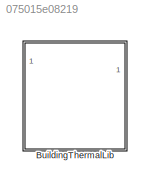
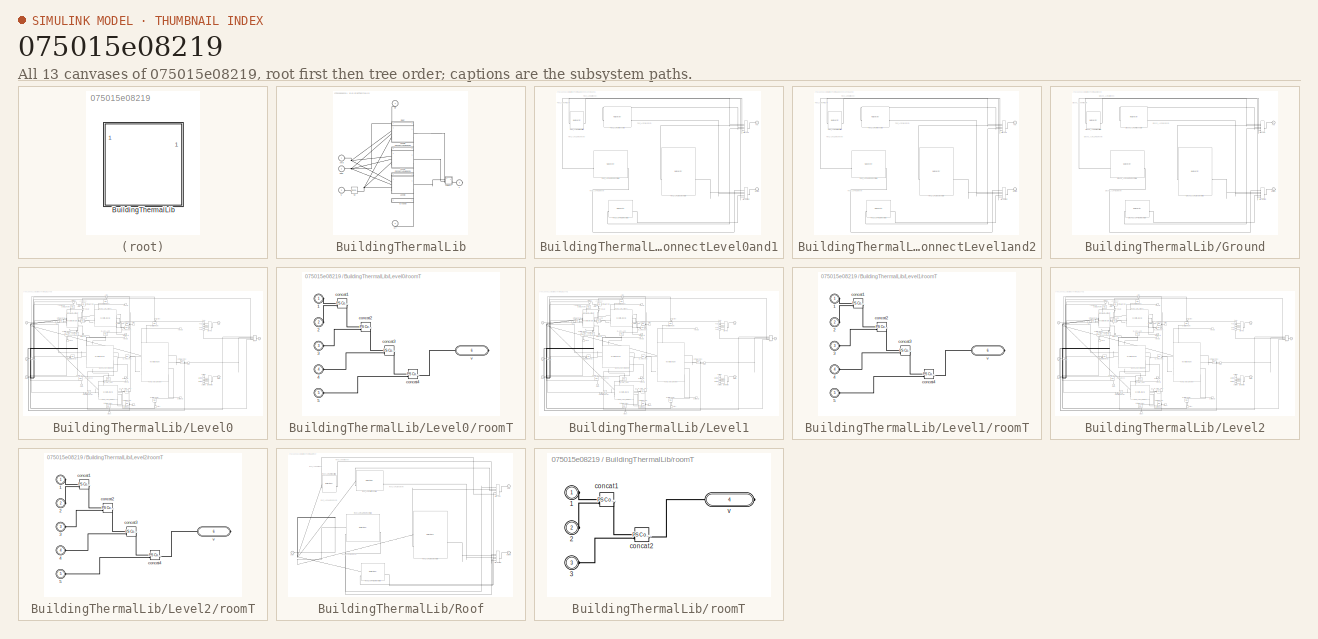
[diagram: thumbnail index - all 13 canvases of the model, root first then tree order]
MODEL slx_075015e08219
KIND library
CONFIG SolverName = VariableStepAuto
BLOCK [SubSystem] BuildingThermalLib
  PortSchema = {"entries":[{"content":{"sides":[{"content":{"connectorIds":["LConn1","LConn2","LConn3"]},"type":"ConnectorPlacement.EquallySpacedRectSide","uuid":"a54174e5-5a1e-4089-b263-99354bf7a073"},{"content":{"connectorIds":["RConn1"],"side":"RIGHT"},"type":"ConnectorPlacement.EquallySpacedRectSide","uuid":"c2c2a31f-cd98-4c14-b6c8-dd8555ba1cf6"},{"content":{"connectorIds":["LConn4"],"side":"TOP"},"type":"Co...<+423ch>
BLOCK [PMIOPort] BuildingThermalLib/Amb
  Side = Left
BLOCK [SubSystem] BuildingThermalLib/ConnectLevel0and1
  PortSchema = {"entries":[{"content":{"sides":[{"content":{},"type":"ConnectorPlacement.EquallySpacedRectSide","uuid":"bfcbcdaf-7e68-43ba-b21b-739e3d917df2"},{"content":{"side":"RIGHT"},"type":"ConnectorPlacement.EquallySpacedRectSide","uuid":"1db46710-465c-454f-9fe4-f8c04c90b155"},{"content":{"connectorIds":["LConn1"],"side":"TOP"},"type":"ConnectorPlacement.EquallySpacedRectSide","uuid":"8ba3322a-28ec-4bcd-a3...<+354ch>  <repeated x3 — deduplicated; at blocks: ConnectLevel0and1, ConnectLevel1and2, Ground>
  ShowPortLabels = none
BLOCK [SimscapeArrayConnection] BuildingThermalLib/ConnectLevel0and1/ArrayBottom
  ConcatenateDimension = 1
  Domain = foundation.thermal.thermal
  NumScalarElements = 5
BLOCK [SimscapeArrayConnection] BuildingThermalLib/ConnectLevel0and1/ArrayTop
  ConcatenateDimension = 1
  Domain = foundation.thermal.thermal
  NumScalarElements = 5
BLOCK [PMIOPort] BuildingThermalLib/ConnectLevel0and1/Bottom
  Port = 2
  Side = Right
BLOCK [Reference] BuildingThermalLib/ConnectLevel0and1/Floor_A1R1(LivingRoom)Blk  REF=WallSelector_lib/Wall Selector
  SourceBlock = WallSelector_lib/Wall Selector
  SourceType = Wall Selector
BLOCK [Reference] BuildingThermalLib/ConnectLevel0and1/Floor_A1R2(Bedroom)Blk  REF=WallSelector_lib/Wall Selector
  SourceBlock = WallSelector_lib/Wall Selector
  SourceType = Wall Selector
BLOCK [Reference] BuildingThermalLib/ConnectLevel0and1/Floor_A1R3(Kitchen)Blk  REF=WallSelector_lib/Wall Selector
  SourceBlock = WallSelector_lib/Wall Selector
  SourceType = Wall Selector
BLOCK [Reference] BuildingThermalLib/ConnectLevel0and1/Floor_A1R4(Bathroom)Blk  REF=WallSelector_lib/Wall Selector
  SourceBlock = WallSelector_lib/Wall Selector
  SourceType = Wall Selector
BLOCK [Reference] BuildingThermalLib/ConnectLevel0and1/Floor_A1R5(FireExit)Blk  REF=WallSelector_lib/Wall Selector
  SourceBlock = WallSelector_lib/Wall Selector
  SourceType = Wall Selector
BLOCK [PMIOPort] BuildingThermalLib/ConnectLevel0and1/Top
  Side = Left
BLOCK [SubSystem] BuildingThermalLib/ConnectLevel1and2
  ShowPortLabels = none
BLOCK [SimscapeArrayConnection] BuildingThermalLib/ConnectLevel1and2/ArrayBottom
  ConcatenateDimension = 1
  Domain = foundation.thermal.thermal
  NumScalarElements = 5
BLOCK [SimscapeArrayConnection] BuildingThermalLib/ConnectLevel1and2/ArrayTop
  ConcatenateDimension = 1
  Domain = foundation.thermal.thermal
  NumScalarElements = 5
BLOCK [PMIOPort] BuildingThermalLib/ConnectLevel1and2/Bottom
  Port = 2
  Side = Right
BLOCK [Reference] BuildingThermalLib/ConnectLevel1and2/Floor_A2R1(LivingRoom)Blk  REF=WallSelector_lib/Wall Selector
  SourceBlock = WallSelector_lib/Wall Selector
  SourceType = Wall Selector
BLOCK [Reference] BuildingThermalLib/ConnectLevel1and2/Floor_A2R2(Bedroom)Blk  REF=WallSelector_lib/Wall Selector
  SourceBlock = WallSelector_lib/Wall Selector
  SourceType = Wall Selector
BLOCK [Reference] BuildingThermalLib/ConnectLevel1and2/Floor_A2R3(Kitchen)Blk  REF=WallSelector_lib/Wall Selector
  SourceBlock = WallSelector_lib/Wall Selector
  SourceType = Wall Selector
BLOCK [Reference] BuildingThermalLib/ConnectLevel1and2/Floor_A2R4(Bathroom)Blk  REF=WallSelector_lib/Wall Selector
  SourceBlock = WallSelector_lib/Wall Selector
  SourceType = Wall Selector
BLOCK [Reference] BuildingThermalLib/ConnectLevel1and2/Floor_A2R5(FireExit)Blk  REF=WallSelector_lib/Wall Selector
  SourceBlock = WallSelector_lib/Wall Selector
  SourceType = Wall Selector
BLOCK [PMIOPort] BuildingThermalLib/ConnectLevel1and2/Top
  Side = Left
BLOCK [PMIOPort] BuildingThermalLib/Gr
  NameLocation = right
  Port = 6
  Side = Right
BLOCK [SubSystem] BuildingThermalLib/Ground
  ShowPortLabels = none
BLOCK [SimscapeArrayConnection] BuildingThermalLib/Ground/ArrayBottom
  ConcatenateDimension = 1
  Domain = foundation.thermal.thermal
  NumScalarElements = 5
BLOCK [SimscapeArrayConnection] BuildingThermalLib/Ground/ArrayTop
  ConcatenateDimension = 1
  Domain = foundation.thermal.thermal
  NumScalarElements = 5
BLOCK [PMIOPort] BuildingThermalLib/Ground/Bottom
  Port = 2
  Side = Right
BLOCK [Reference] BuildingThermalLib/Ground/Ground_A1R1(LivingRoom)Blk  REF=WallSelector_lib/Wall Selector
  SourceBlock = WallSelector_lib/Wall Selector
  SourceType = Wall Selector
BLOCK [Reference] BuildingThermalLib/Ground/Ground_A1R2(Bedroom)Blk  REF=WallSelector_lib/Wall Selector
  SourceBlock = WallSelector_lib/Wall Selector
  SourceType = Wall Selector
BLOCK [Reference] BuildingThermalLib/Ground/Ground_A1R3(Kitchen)Blk  REF=WallSelector_lib/Wall Selector
  SourceBlock = WallSelector_lib/Wall Selector
  SourceType = Wall Selector
BLOCK [Reference] BuildingThermalLib/Ground/Ground_A1R4(Bathroom)Blk  REF=WallSelector_lib/Wall Selector
  SourceBlock = WallSelector_lib/Wall Selector
  SourceType = Wall Selector
BLOCK [Reference] BuildingThermalLib/Ground/Ground_A1R5(FireExit)Blk  REF=WallSelector_lib/Wall Selector
  SourceBlock = WallSelector_lib/Wall Selector
  SourceType = Wall Selector
BLOCK [PMIOPort] BuildingThermalLib/Ground/Top
  Side = Left
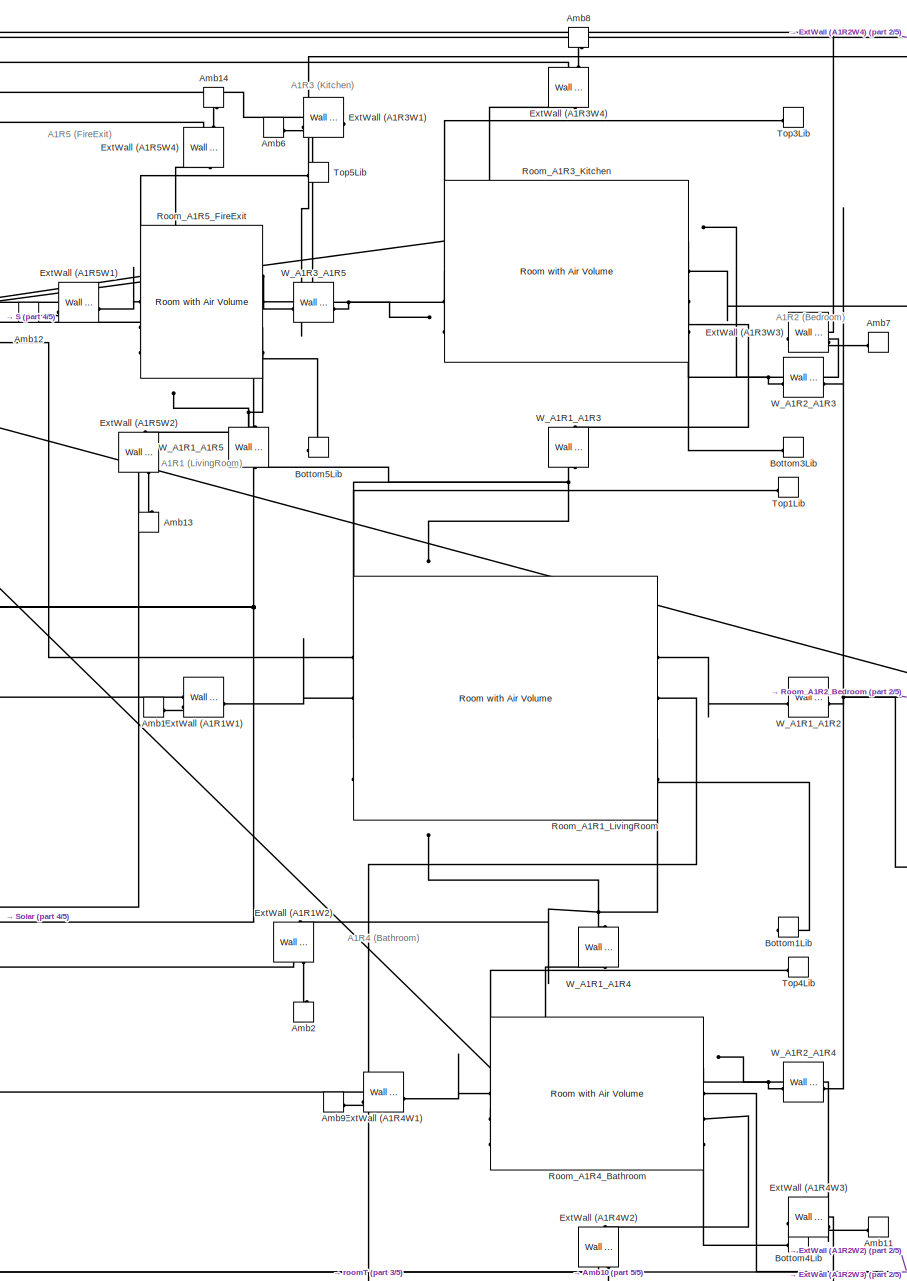
[diagram: BuildingThermalLib/Level0 - part 1/5, left side, full height]
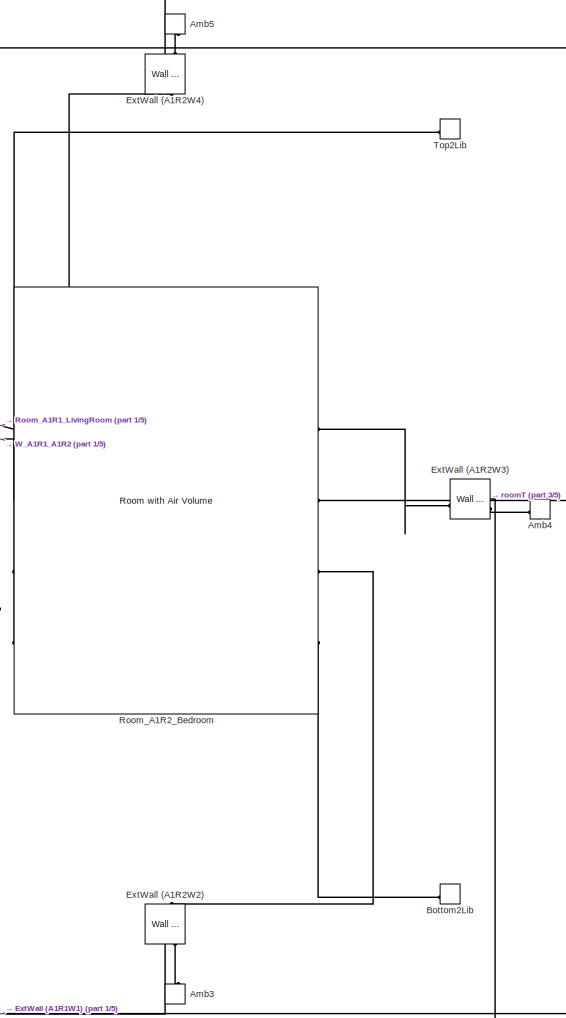
[diagram: BuildingThermalLib/Level0 - part 2/5, center side, full height]
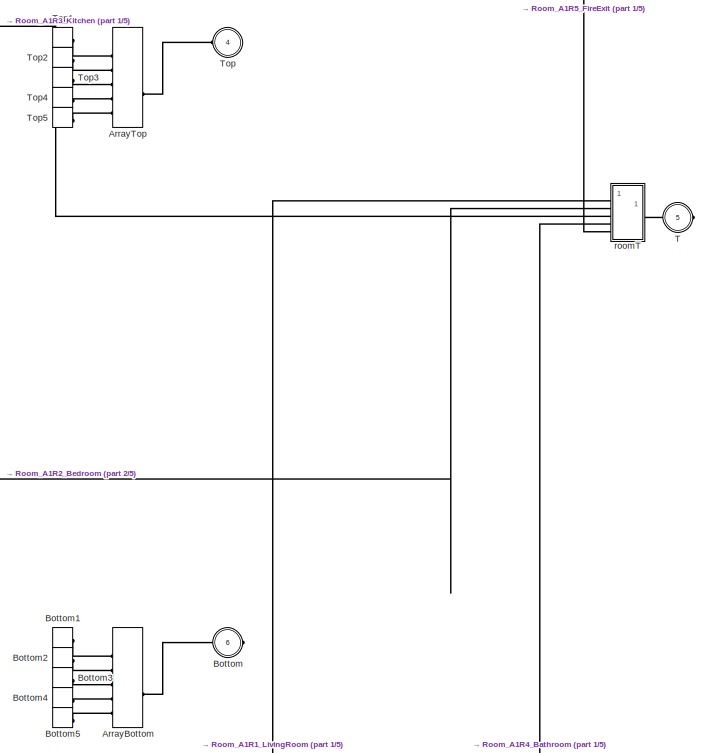
[diagram: BuildingThermalLib/Level0 - part 3/5, middle right region]
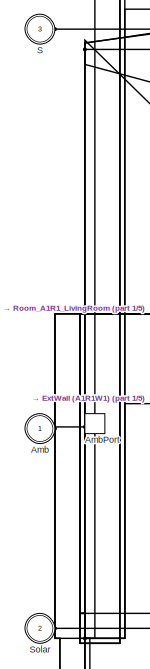
[diagram: BuildingThermalLib/Level0 - part 4/5, middle left region]
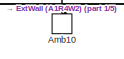
[diagram: BuildingThermalLib/Level0 - part 5/5, bottom center region]
BLOCK [SubSystem] BuildingThermalLib/Level0
  PortSchema = {"entries":[{"content":{"sides":[{"content":{"connectorIds":["LConn1","LConn2","LConn3"]},"type":"ConnectorPlacement.EquallySpacedRectSide","uuid":"f5302b38-994b-4d73-bed8-b19055c1e83a"},{"content":{"connectorIds":["RConn1"],"side":"RIGHT"},"type":"ConnectorPlacement.EquallySpacedRectSide","uuid":"faa5d083-f69a-475e-bab7-3d1e14a6968b"},{"content":{"connectorIds":["LConn4"],"side":"TOP"},"type":"Co...<+423ch>  <repeated x3 — deduplicated; at blocks: Level0, Level1, Level2>
BLOCK [PMIOPort] BuildingThermalLib/Level0/Amb
  Side = Left
BLOCK [ConnectionLabel] BuildingThermalLib/Level0/Amb1
  Label = A
BLOCK [ConnectionLabel] BuildingThermalLib/Level0/Amb10
  Label = A
  NameLocation = right
BLOCK [ConnectionLabel] BuildingThermalLib/Level0/Amb11
  Label = A
BLOCK [ConnectionLabel] BuildingThermalLib/Level0/Amb12
  Label = A
BLOCK [ConnectionLabel] BuildingThermalLib/Level0/Amb13
  Label = A
  NameLocation = right
BLOCK [ConnectionLabel] BuildingThermalLib/Level0/Amb14
  Label = A
  NameLocation = right
BLOCK [ConnectionLabel] BuildingThermalLib/Level0/Amb2
  Label = A
  NameLocation = right
BLOCK [ConnectionLabel] BuildingThermalLib/Level0/Amb3
  Label = A
  NameLocation = right
BLOCK [ConnectionLabel] BuildingThermalLib/Level0/Amb4
  Label = A
BLOCK [ConnectionLabel] BuildingThermalLib/Level0/Amb5
  Label = A
  NameLocation = right
BLOCK [ConnectionLabel] BuildingThermalLib/Level0/Amb6
  Label = A
BLOCK [ConnectionLabel] BuildingThermalLib/Level0/Amb7
  Label = A
BLOCK [ConnectionLabel] BuildingThermalLib/Level0/Amb8
  Label = A
  NameLocation = right
BLOCK [ConnectionLabel] BuildingThermalLib/Level0/Amb9
  Label = A
BLOCK [ConnectionLabel] BuildingThermalLib/Level0/AmbPort
  Label = A
BLOCK [SimscapeArrayConnection] BuildingThermalLib/Level0/ArrayBottom
  ConcatenateDimension = 1
  Domain = foundation.thermal.thermal
  NumScalarElements = 5
BLOCK [SimscapeArrayConnection] BuildingThermalLib/Level0/ArrayTop
  ConcatenateDimension = 1
  Domain = foundation.thermal.thermal
  NumScalarElements = 5
BLOCK [PMIOPort] BuildingThermalLib/Level0/Bottom
  Port = 6
  Side = Right
BLOCK [ConnectionLabel] BuildingThermalLib/Level0/Bottom1
  Label = Bottom1
BLOCK [ConnectionLabel] BuildingThermalLib/Level0/Bottom1Lib
  Label = Bottom1
BLOCK [ConnectionLabel] BuildingThermalLib/Level0/Bottom2
  Label = Bottom2
BLOCK [ConnectionLabel] BuildingThermalLib/Level0/Bottom2Lib
  Label = Bottom2
BLOCK [ConnectionLabel] BuildingThermalLib/Level0/Bottom3
  Label = Bottom3
BLOCK [ConnectionLabel] BuildingThermalLib/Level0/Bottom3Lib
  Label = Bottom3
BLOCK [ConnectionLabel] BuildingThermalLib/Level0/Bottom4
  Label = Bottom4
BLOCK [ConnectionLabel] BuildingThermalLib/Level0/Bottom4Lib
  Label = Bottom4
BLOCK [ConnectionLabel] BuildingThermalLib/Level0/Bottom5
  Label = Bottom5
BLOCK [ConnectionLabel] BuildingThermalLib/Level0/Bottom5Lib
  Label = Bottom5
BLOCK [Reference] BuildingThermalLib/Level0/ExtWall (A1R1W1)  REF=ExternalWall_lib/Wall External
  SourceBlock = ExternalWall_lib/Wall External
  SourceType = Wall External
BLOCK [Reference] BuildingThermalLib/Level0/ExtWall (A1R1W2)  REF=ExternalWall_lib/Wall External
  NameLocation = right
  SourceBlock = ExternalWall_lib/Wall External
  SourceType = Wall External
BLOCK [Reference] BuildingThermalLib/Level0/ExtWall (A1R2W2)  REF=ExternalWall_lib/Wall External
  NameLocation = right
  SourceBlock = ExternalWall_lib/Wall External
  SourceType = Wall External
BLOCK [Reference] BuildingThermalLib/Level0/ExtWall (A1R2W3)  REF=ExternalWall_lib/Wall External
  SourceBlock = ExternalWall_lib/Wall External
  SourceType = Wall External
BLOCK [Reference] BuildingThermalLib/Level0/ExtWall (A1R2W4)  REF=ExternalWall_lib/Wall External
  NameLocation = right
  SourceBlock = ExternalWall_lib/Wall External
  SourceType = Wall External
BLOCK [Reference] BuildingThermalLib/Level0/ExtWall (A1R3W1)  REF=ExternalWall_lib/Wall External
  SourceBlock = ExternalWall_lib/Wall External
  SourceType = Wall External
BLOCK [Reference] BuildingThermalLib/Level0/ExtWall (A1R3W3)  REF=ExternalWall_lib/Wall External
  SourceBlock = ExternalWall_lib/Wall External
  SourceType = Wall External
BLOCK [Reference] BuildingThermalLib/Level0/ExtWall (A1R3W4)  REF=ExternalWall_lib/Wall External
  NameLocation = right
  SourceBlock = ExternalWall_lib/Wall External
  SourceType = Wall External
BLOCK [Reference] BuildingThermalLib/Level0/ExtWall (A1R4W1)  REF=ExternalWall_lib/Wall External
  SourceBlock = ExternalWall_lib/Wall External
  SourceType = Wall External
BLOCK [Reference] BuildingThermalLib/Level0/ExtWall (A1R4W2)  REF=ExternalWall_lib/Wall External
  NameLocation = right
  SourceBlock = ExternalWall_lib/Wall External
  SourceType = Wall External
BLOCK [Reference] BuildingThermalLib/Level0/ExtWall (A1R4W3)  REF=ExternalWall_lib/Wall External
  SourceBlock = ExternalWall_lib/Wall External
  SourceType = Wall External
BLOCK [Reference] BuildingThermalLib/Level0/ExtWall (A1R5W1)  REF=ExternalWall_lib/Wall External
  SourceBlock = ExternalWall_lib/Wall External
  SourceType = Wall External
BLOCK [Reference] BuildingThermalLib/Level0/ExtWall (A1R5W2)  REF=ExternalWall_lib/Wall External
  NameLocation = right
  SourceBlock = ExternalWall_lib/Wall External
  SourceType = Wall External
BLOCK [Reference] BuildingThermalLib/Level0/ExtWall (A1R5W4)  REF=ExternalWall_lib/Wall External
  NameLocation = right
  SourceBlock = ExternalWall_lib/Wall External
  SourceType = Wall External
BLOCK [Reference] BuildingThermalLib/Level0/Room_A1R1_LivingRoom  REF=RoomWithAirVolume/Room with Air Volume
  SourceBlock = RoomWithAirVolume/Room with Air Volume
BLOCK [Reference] BuildingThermalLib/Level0/Room_A1R2_Bedroom  REF=RoomWithAirVolume/Room with Air Volume
  SourceBlock = RoomWithAirVolume/Room with Air Volume
BLOCK [Reference] BuildingThermalLib/Level0/Room_A1R3_Kitchen  REF=RoomWithAirVolume/Room with Air Volume
  SourceBlock = RoomWithAirVolume/Room with Air Volume
BLOCK [Reference] BuildingThermalLib/Level0/Room_A1R4_Bathroom  REF=RoomWithAirVolume/Room with Air Volume
  SourceBlock = RoomWithAirVolume/Room with Air Volume
BLOCK [Reference] BuildingThermalLib/Level0/Room_A1R5_FireExit  REF=RoomWithAirVolume/Room with Air Volume
  SourceBlock = RoomWithAirVolume/Room with Air Volume
BLOCK [PMIOPort] BuildingThermalLib/Level0/S
  Port = 3
  Side = Left
BLOCK [PMIOPort] BuildingThermalLib/Level0/Solar
  Port = 2
  Side = Left
BLOCK [PMIOPort] BuildingThermalLib/Level0/T
  Port = 5
  Side = Right
BLOCK [PMIOPort] BuildingThermalLib/Level0/Top
  Port = 4
  Side = Left
BLOCK [ConnectionLabel] BuildingThermalLib/Level0/Top1
  Label = Top1
BLOCK [ConnectionLabel] BuildingThermalLib/Level0/Top1Lib
  Label = Top1
BLOCK [ConnectionLabel] BuildingThermalLib/Level0/Top2
  Label = Top2
BLOCK [ConnectionLabel] BuildingThermalLib/Level0/Top2Lib
  Label = Top2
BLOCK [ConnectionLabel] BuildingThermalLib/Level0/Top3
  Label = Top3
BLOCK [ConnectionLabel] BuildingThermalLib/Level0/Top3Lib
  Label = Top3
BLOCK [ConnectionLabel] BuildingThermalLib/Level0/Top4
  Label = Top4
BLOCK [ConnectionLabel] BuildingThermalLib/Level0/Top4Lib
  Label = Top4
BLOCK [ConnectionLabel] BuildingThermalLib/Level0/Top5
  Label = Top5
BLOCK [ConnectionLabel] BuildingThermalLib/Level0/Top5Lib
  Label = Top5
BLOCK [Reference] BuildingThermalLib/Level0/W_A1R1_A1R2  REF=WallSelector_lib/Wall Selector
  SourceBlock = WallSelector_lib/Wall Selector
  SourceType = Wall Selector
BLOCK [Reference] BuildingThermalLib/Level0/W_A1R1_A1R3  REF=WallSelector_lib/Wall Selector
  NameLocation = right
  SourceBlock = WallSelector_lib/Wall Selector
  SourceType = Wall Selector
BLOCK [Reference] BuildingThermalLib/Level0/W_A1R1_A1R4  REF=WallSelector_lib/Wall Selector
  NameLocation = right
  SourceBlock = WallSelector_lib/Wall Selector
  SourceType = Wall Selector
BLOCK [Reference] BuildingThermalLib/Level0/W_A1R1_A1R5  REF=WallSelector_lib/Wall Selector
  NameLocation = right
  SourceBlock = WallSelector_lib/Wall Selector
  SourceType = Wall Selector
BLOCK [Reference] BuildingThermalLib/Level0/W_A1R2_A1R3  REF=WallSelector_lib/Wall Selector
  SourceBlock = WallSelector_lib/Wall Selector
  SourceType = Wall Selector
BLOCK [Reference] BuildingThermalLib/Level0/W_A1R2_A1R4  REF=WallSelector_lib/Wall Selector
  SourceBlock = WallSelector_lib/Wall Selector
  SourceType = Wall Selector
BLOCK [Reference] BuildingThermalLib/Level0/W_A1R3_A1R5  REF=WallSelector_lib/Wall Selector
  SourceBlock = WallSelector_lib/Wall Selector
  SourceType = Wall Selector
BLOCK [SubSystem] BuildingThermalLib/Level0/roomT
  ShowPortLabels = none
BLOCK [PMIOPort] BuildingThermalLib/Level0/roomT/1
  Side = Left
BLOCK [PMIOPort] BuildingThermalLib/Level0/roomT/2
  Port = 2
  Side = Left
BLOCK [PMIOPort] BuildingThermalLib/Level0/roomT/3
  Port = 3
  Side = Left
BLOCK [PMIOPort] BuildingThermalLib/Level0/roomT/4
  Port = 4
  Side = Left
BLOCK [PMIOPort] BuildingThermalLib/Level0/roomT/5
  Port = 5
  Side = Left
BLOCK [Reference] BuildingThermalLib/Level0/roomT/concat1  REF=fl_lib/Physical Signals/Functions/PS Concatenate
  SourceBlock = fl_lib/Physical Signals/Functions/PS Concatenate
  SourceType = PS Concatenate
BLOCK [Reference] BuildingThermalLib/Level0/roomT/concat2  REF=fl_lib/Physical Signals/Functions/PS Concatenate
  SourceBlock = fl_lib/Physical Signals/Functions/PS Concatenate
  SourceType = PS Concatenate
BLOCK [Reference] BuildingThermalLib/Level0/roomT/concat3  REF=fl_lib/Physical Signals/Functions/PS Concatenate
  SourceBlock = fl_lib/Physical Signals/Functions/PS Concatenate
  SourceType = PS Concatenate
BLOCK [Reference] BuildingThermalLib/Level0/roomT/concat4  REF=fl_lib/Physical Signals/Functions/PS Concatenate
  SourceBlock = fl_lib/Physical Signals/Functions/PS Concatenate
  SourceType = PS Concatenate
BLOCK [PMIOPort] BuildingThermalLib/Level0/roomT/v
  Port = 6
  Side = Right
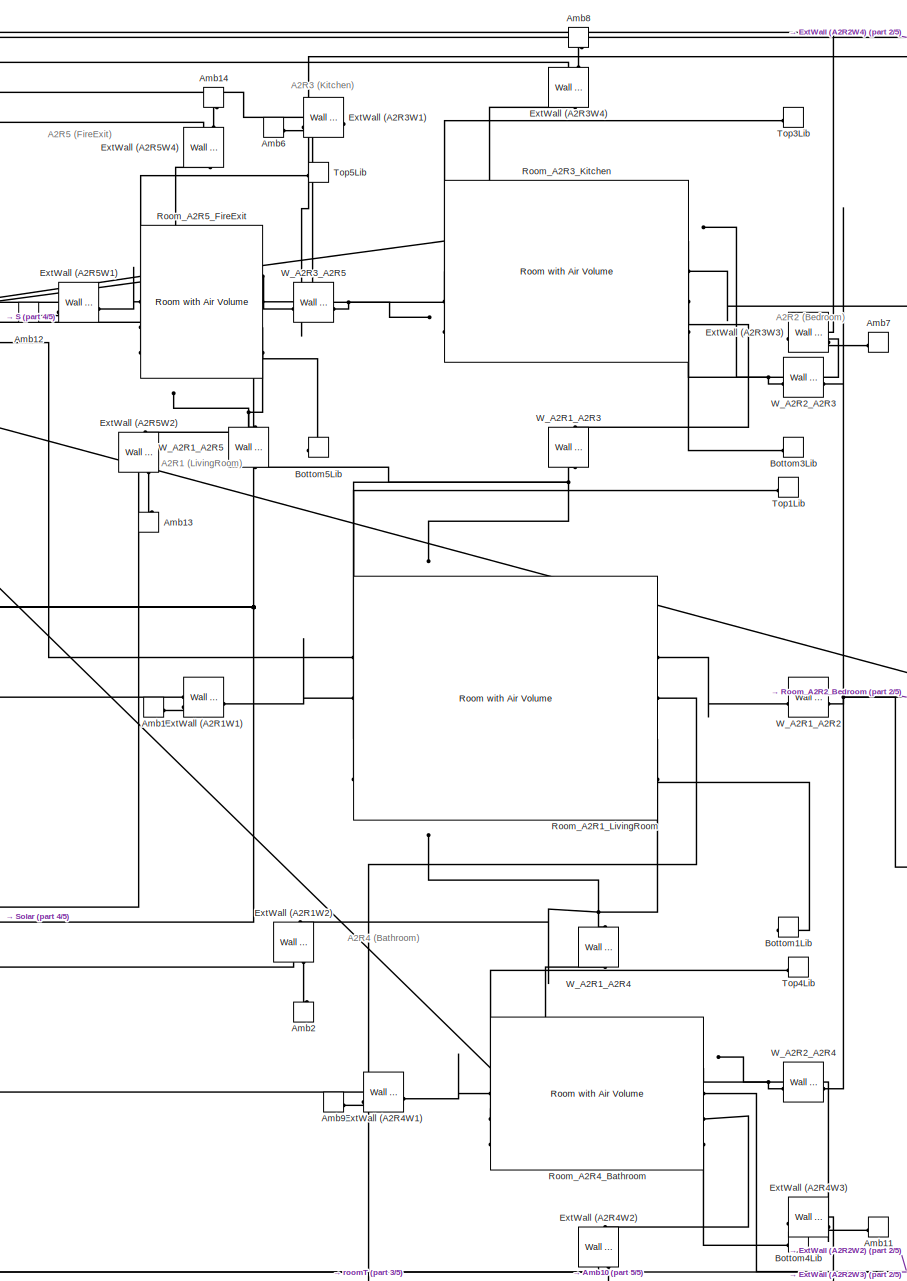
[diagram: BuildingThermalLib/Level1 - part 1/5, left side, full height]
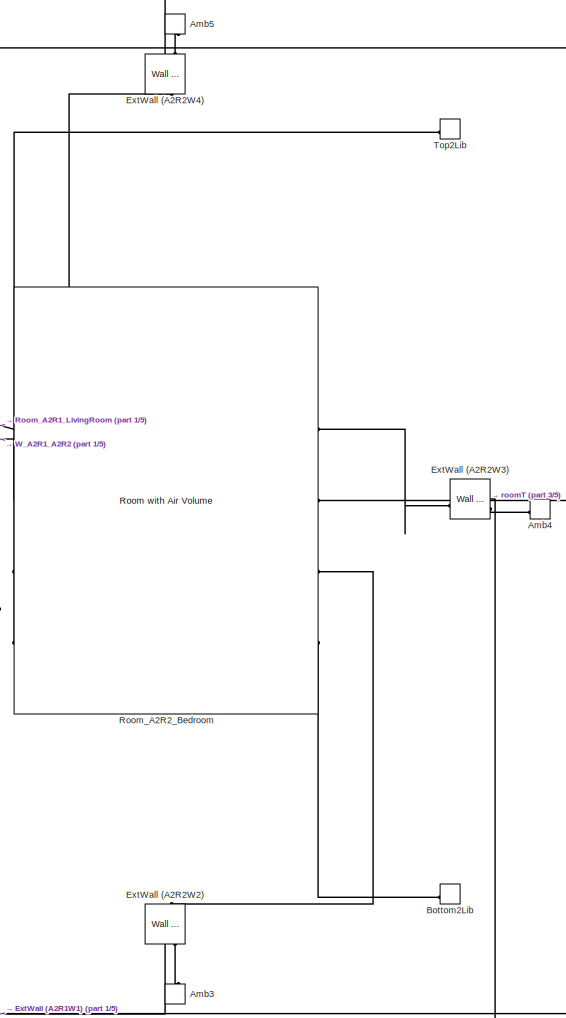
[diagram: BuildingThermalLib/Level1 - part 2/5, center side, full height]
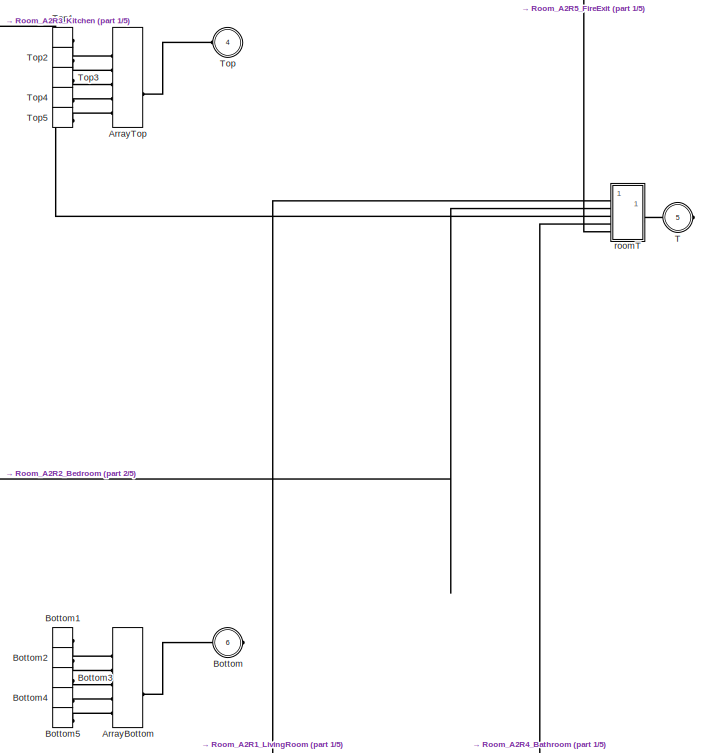
[diagram: BuildingThermalLib/Level1 - part 3/5, middle right region]
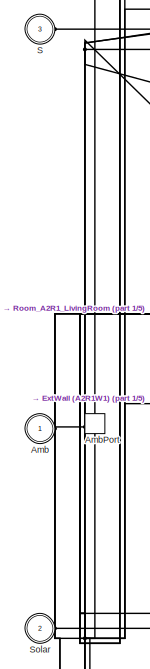
[diagram: BuildingThermalLib/Level1 - part 4/5, middle left region]
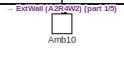
[diagram: BuildingThermalLib/Level1 - part 5/5, bottom center region]
BLOCK [SubSystem] BuildingThermalLib/Level1
BLOCK [PMIOPort] BuildingThermalLib/Level1/Amb
  Side = Left
BLOCK [ConnectionLabel] BuildingThermalLib/Level1/Amb1
  Label = A
BLOCK [ConnectionLabel] BuildingThermalLib/Level1/Amb10
  Label = A
  NameLocation = right
BLOCK [ConnectionLabel] BuildingThermalLib/Level1/Amb11
  Label = A
BLOCK [ConnectionLabel] BuildingThermalLib/Level1/Amb12
  Label = A
BLOCK [ConnectionLabel] BuildingThermalLib/Level1/Amb13
  Label = A
  NameLocation = right
BLOCK [ConnectionLabel] BuildingThermalLib/Level1/Amb14
  Label = A
  NameLocation = right
BLOCK [ConnectionLabel] BuildingThermalLib/Level1/Amb2
  Label = A
  NameLocation = right
BLOCK [ConnectionLabel] BuildingThermalLib/Level1/Amb3
  Label = A
  NameLocation = right
BLOCK [ConnectionLabel] BuildingThermalLib/Level1/Amb4
  Label = A
BLOCK [ConnectionLabel] BuildingThermalLib/Level1/Amb5
  Label = A
  NameLocation = right
BLOCK [ConnectionLabel] BuildingThermalLib/Level1/Amb6
  Label = A
BLOCK [ConnectionLabel] BuildingThermalLib/Level1/Amb7
  Label = A
BLOCK [ConnectionLabel] BuildingThermalLib/Level1/Amb8
  Label = A
  NameLocation = right
BLOCK [ConnectionLabel] BuildingThermalLib/Level1/Amb9
  Label = A
BLOCK [ConnectionLabel] BuildingThermalLib/Level1/AmbPort
  Label = A
BLOCK [SimscapeArrayConnection] BuildingThermalLib/Level1/ArrayBottom
  ConcatenateDimension = 1
  Domain = foundation.thermal.thermal
  NumScalarElements = 5
BLOCK [SimscapeArrayConnection] BuildingThermalLib/Level1/ArrayTop
  ConcatenateDimension = 1
  Domain = foundation.thermal.thermal
  NumScalarElements = 5
BLOCK [PMIOPort] BuildingThermalLib/Level1/Bottom
  Port = 6
  Side = Right
BLOCK [ConnectionLabel] BuildingThermalLib/Level1/Bottom1
  Label = Bottom1
BLOCK [ConnectionLabel] BuildingThermalLib/Level1/Bottom1Lib
  Label = Bottom1
BLOCK [ConnectionLabel] BuildingThermalLib/Level1/Bottom2
  Label = Bottom2
BLOCK [ConnectionLabel] BuildingThermalLib/Level1/Bottom2Lib
  Label = Bottom2
BLOCK [ConnectionLabel] BuildingThermalLib/Level1/Bottom3
  Label = Bottom3
BLOCK [ConnectionLabel] BuildingThermalLib/Level1/Bottom3Lib
  Label = Bottom3
BLOCK [ConnectionLabel] BuildingThermalLib/Level1/Bottom4
  Label = Bottom4
BLOCK [ConnectionLabel] BuildingThermalLib/Level1/Bottom4Lib
  Label = Bottom4
BLOCK [ConnectionLabel] BuildingThermalLib/Level1/Bottom5
  Label = Bottom5
BLOCK [ConnectionLabel] BuildingThermalLib/Level1/Bottom5Lib
  Label = Bottom5
BLOCK [Reference] BuildingThermalLib/Level1/ExtWall (A2R1W1)  REF=ExternalWall_lib/Wall External
  SourceBlock = ExternalWall_lib/Wall External
  SourceType = Wall External
BLOCK [Reference] BuildingThermalLib/Level1/ExtWall (A2R1W2)  REF=ExternalWall_lib/Wall External
  NameLocation = right
  SourceBlock = ExternalWall_lib/Wall External
  SourceType = Wall External
BLOCK [Reference] BuildingThermalLib/Level1/ExtWall (A2R2W2)  REF=ExternalWall_lib/Wall External
  NameLocation = right
  SourceBlock = ExternalWall_lib/Wall External
  SourceType = Wall External
BLOCK [Reference] BuildingThermalLib/Level1/ExtWall (A2R2W3)  REF=ExternalWall_lib/Wall External
  SourceBlock = ExternalWall_lib/Wall External
  SourceType = Wall External
BLOCK [Reference] BuildingThermalLib/Level1/ExtWall (A2R2W4)  REF=ExternalWall_lib/Wall External
  NameLocation = right
  SourceBlock = ExternalWall_lib/Wall External
  SourceType = Wall External
BLOCK [Reference] BuildingThermalLib/Level1/ExtWall (A2R3W1)  REF=ExternalWall_lib/Wall External
  SourceBlock = ExternalWall_lib/Wall External
  SourceType = Wall External
BLOCK [Reference] BuildingThermalLib/Level1/ExtWall (A2R3W3)  REF=ExternalWall_lib/Wall External
  SourceBlock = ExternalWall_lib/Wall External
  SourceType = Wall External
BLOCK [Reference] BuildingThermalLib/Level1/ExtWall (A2R3W4)  REF=ExternalWall_lib/Wall External
  NameLocation = right
  SourceBlock = ExternalWall_lib/Wall External
  SourceType = Wall External
BLOCK [Reference] BuildingThermalLib/Level1/ExtWall (A2R4W1)  REF=ExternalWall_lib/Wall External
  SourceBlock = ExternalWall_lib/Wall External
  SourceType = Wall External
BLOCK [Reference] BuildingThermalLib/Level1/ExtWall (A2R4W2)  REF=ExternalWall_lib/Wall External
  NameLocation = right
  SourceBlock = ExternalWall_lib/Wall External
  SourceType = Wall External
BLOCK [Reference] BuildingThermalLib/Level1/ExtWall (A2R4W3)  REF=ExternalWall_lib/Wall External
  SourceBlock = ExternalWall_lib/Wall External
  SourceType = Wall External
BLOCK [Reference] BuildingThermalLib/Level1/ExtWall (A2R5W1)  REF=ExternalWall_lib/Wall External
  SourceBlock = ExternalWall_lib/Wall External
  SourceType = Wall External
BLOCK [Reference] BuildingThermalLib/Level1/ExtWall (A2R5W2)  REF=ExternalWall_lib/Wall External
  NameLocation = right
  SourceBlock = ExternalWall_lib/Wall External
  SourceType = Wall External
BLOCK [Reference] BuildingThermalLib/Level1/ExtWall (A2R5W4)  REF=ExternalWall_lib/Wall External
  NameLocation = right
  SourceBlock = ExternalWall_lib/Wall External
  SourceType = Wall External
BLOCK [Reference] BuildingThermalLib/Level1/Room_A2R1_LivingRoom  REF=RoomWithAirVolume/Room with Air Volume
  SourceBlock = RoomWithAirVolume/Room with Air Volume
BLOCK [Reference] BuildingThermalLib/Level1/Room_A2R2_Bedroom  REF=RoomWithAirVolume/Room with Air Volume
  SourceBlock = RoomWithAirVolume/Room with Air Volume
BLOCK [Reference] BuildingThermalLib/Level1/Room_A2R3_Kitchen  REF=RoomWithAirVolume/Room with Air Volume
  SourceBlock = RoomWithAirVolume/Room with Air Volume
BLOCK [Reference] BuildingThermalLib/Level1/Room_A2R4_Bathroom  REF=RoomWithAirVolume/Room with Air Volume
  SourceBlock = RoomWithAirVolume/Room with Air Volume
BLOCK [Reference] BuildingThermalLib/Level1/Room_A2R5_FireExit  REF=RoomWithAirVolume/Room with Air Volume
  SourceBlock = RoomWithAirVolume/Room with Air Volume
BLOCK [PMIOPort] BuildingThermalLib/Level1/S
  Port = 3
  Side = Left
BLOCK [PMIOPort] BuildingThermalLib/Level1/Solar
  Port = 2
  Side = Left
BLOCK [PMIOPort] BuildingThermalLib/Level1/T
  Port = 5
  Side = Right
BLOCK [PMIOPort] BuildingThermalLib/Level1/Top
  Port = 4
  Side = Left
BLOCK [ConnectionLabel] BuildingThermalLib/Level1/Top1
  Label = Top1
BLOCK [ConnectionLabel] BuildingThermalLib/Level1/Top1Lib
  Label = Top1
BLOCK [ConnectionLabel] BuildingThermalLib/Level1/Top2
  Label = Top2
BLOCK [ConnectionLabel] BuildingThermalLib/Level1/Top2Lib
  Label = Top2
BLOCK [ConnectionLabel] BuildingThermalLib/Level1/Top3
  Label = Top3
BLOCK [ConnectionLabel] BuildingThermalLib/Level1/Top3Lib
  Label = Top3
BLOCK [ConnectionLabel] BuildingThermalLib/Level1/Top4
  Label = Top4
BLOCK [ConnectionLabel] BuildingThermalLib/Level1/Top4Lib
  Label = Top4
BLOCK [ConnectionLabel] BuildingThermalLib/Level1/Top5
  Label = Top5
BLOCK [ConnectionLabel] BuildingThermalLib/Level1/Top5Lib
  Label = Top5
BLOCK [Reference] BuildingThermalLib/Level1/W_A2R1_A2R2  REF=WallSelector_lib/Wall Selector
  SourceBlock = WallSelector_lib/Wall Selector
  SourceType = Wall Selector
BLOCK [Reference] BuildingThermalLib/Level1/W_A2R1_A2R3  REF=WallSelector_lib/Wall Selector
  NameLocation = right
  SourceBlock = WallSelector_lib/Wall Selector
  SourceType = Wall Selector
BLOCK [Reference] BuildingThermalLib/Level1/W_A2R1_A2R4  REF=WallSelector_lib/Wall Selector
  NameLocation = right
  SourceBlock = WallSelector_lib/Wall Selector
  SourceType = Wall Selector
BLOCK [Reference] BuildingThermalLib/Level1/W_A2R1_A2R5  REF=WallSelector_lib/Wall Selector
  NameLocation = right
  SourceBlock = WallSelector_lib/Wall Selector
  SourceType = Wall Selector
BLOCK [Reference] BuildingThermalLib/Level1/W_A2R2_A2R3  REF=WallSelector_lib/Wall Selector
  SourceBlock = WallSelector_lib/Wall Selector
  SourceType = Wall Selector
BLOCK [Reference] BuildingThermalLib/Level1/W_A2R2_A2R4  REF=WallSelector_lib/Wall Selector
  SourceBlock = WallSelector_lib/Wall Selector
  SourceType = Wall Selector
BLOCK [Reference] BuildingThermalLib/Level1/W_A2R3_A2R5  REF=WallSelector_lib/Wall Selector
  SourceBlock = WallSelector_lib/Wall Selector
  SourceType = Wall Selector
BLOCK [SubSystem] BuildingThermalLib/Level1/roomT
  ShowPortLabels = none
BLOCK [PMIOPort] BuildingThermalLib/Level1/roomT/1
  Side = Left
BLOCK [PMIOPort] BuildingThermalLib/Level1/roomT/2
  Port = 2
  Side = Left
BLOCK [PMIOPort] BuildingThermalLib/Level1/roomT/3
  Port = 3
  Side = Left
BLOCK [PMIOPort] BuildingThermalLib/Level1/roomT/4
  Port = 4
  Side = Left
BLOCK [PMIOPort] BuildingThermalLib/Level1/roomT/5
  Port = 5
  Side = Left
BLOCK [Reference] BuildingThermalLib/Level1/roomT/concat1  REF=fl_lib/Physical Signals/Functions/PS Concatenate
  SourceBlock = fl_lib/Physical Signals/Functions/PS Concatenate
  SourceType = PS Concatenate
BLOCK [Reference] BuildingThermalLib/Level1/roomT/concat2  REF=fl_lib/Physical Signals/Functions/PS Concatenate
  SourceBlock = fl_lib/Physical Signals/Functions/PS Concatenate
  SourceType = PS Concatenate
BLOCK [Reference] BuildingThermalLib/Level1/roomT/concat3  REF=fl_lib/Physical Signals/Functions/PS Concatenate
  SourceBlock = fl_lib/Physical Signals/Functions/PS Concatenate
  SourceType = PS Concatenate
BLOCK [Reference] BuildingThermalLib/Level1/roomT/concat4  REF=fl_lib/Physical Signals/Functions/PS Concatenate
  SourceBlock = fl_lib/Physical Signals/Functions/PS Concatenate
  SourceType = PS Concatenate
BLOCK [PMIOPort] BuildingThermalLib/Level1/roomT/v
  Port = 6
  Side = Right
BLOCK [SubSystem] BuildingThermalLib/Level2
BLOCK [PMIOPort] BuildingThermalLib/Level2/Amb
  Side = Left
BLOCK [ConnectionLabel] BuildingThermalLib/Level2/Amb1
  Label = A
BLOCK [ConnectionLabel] BuildingThermalLib/Level2/Amb10
  Label = A
  NameLocation = right
BLOCK [ConnectionLabel] BuildingThermalLib/Level2/Amb11
  Label = A
BLOCK [ConnectionLabel] BuildingThermalLib/Level2/Amb12
  Label = A
BLOCK [ConnectionLabel] BuildingThermalLib/Level2/Amb13
  Label = A
  NameLocation = right
BLOCK [ConnectionLabel] BuildingThermalLib/Level2/Amb14
  Label = A
  NameLocation = right
BLOCK [ConnectionLabel] BuildingThermalLib/Level2/Amb2
  Label = A
  NameLocation = right
BLOCK [ConnectionLabel] BuildingThermalLib/Level2/Amb3
  Label = A
  NameLocation = right
BLOCK [ConnectionLabel] BuildingThermalLib/Level2/Amb4
  Label = A
BLOCK [ConnectionLabel] BuildingThermalLib/Level2/Amb5
  Label = A
  NameLocation = right
BLOCK [ConnectionLabel] BuildingThermalLib/Level2/Amb6
  Label = A
BLOCK [ConnectionLabel] BuildingThermalLib/Level2/Amb7
  Label = A
BLOCK [ConnectionLabel] BuildingThermalLib/Level2/Amb8
  Label = A
  NameLocation = right
BLOCK [ConnectionLabel] BuildingThermalLib/Level2/Amb9
  Label = A
BLOCK [ConnectionLabel] BuildingThermalLib/Level2/AmbPort
  Label = A
BLOCK [SimscapeArrayConnection] BuildingThermalLib/Level2/ArrayBottom
  ConcatenateDimension = 1
  Domain = foundation.thermal.thermal
  NumScalarElements = 5
BLOCK [SimscapeArrayConnection] BuildingThermalLib/Level2/ArrayTop
  ConcatenateDimension = 1
  Domain = foundation.thermal.thermal
  NumScalarElements = 5
BLOCK [PMIOPort] BuildingThermalLib/Level2/Bottom
  Port = 6
  Side = Right
BLOCK [ConnectionLabel] BuildingThermalLib/Level2/Bottom1
  Label = Bottom1
BLOCK [ConnectionLabel] BuildingThermalLib/Level2/Bottom1Lib
  Label = Bottom1
BLOCK [ConnectionLabel] BuildingThermalLib/Level2/Bottom2
  Label = Bottom2
BLOCK [ConnectionLabel] BuildingThermalLib/Level2/Bottom2Lib
  Label = Bottom2
BLOCK [ConnectionLabel] BuildingThermalLib/Level2/Bottom3
  Label = Bottom3
BLOCK [ConnectionLabel] BuildingThermalLib/Level2/Bottom3Lib
  Label = Bottom3
BLOCK [ConnectionLabel] BuildingThermalLib/Level2/Bottom4
  Label = Bottom4
BLOCK [ConnectionLabel] BuildingThermalLib/Level2/Bottom4Lib
  Label = Bottom4
BLOCK [ConnectionLabel] BuildingThermalLib/Level2/Bottom5
  Label = Bottom5
BLOCK [ConnectionLabel] BuildingThermalLib/Level2/Bottom5Lib
  Label = Bottom5
BLOCK [Reference] BuildingThermalLib/Level2/ExtWall (A3R1W1)  REF=ExternalWall_lib/Wall External
  SourceBlock = ExternalWall_lib/Wall External
  SourceType = Wall External
BLOCK [Reference] BuildingThermalLib/Level2/ExtWall (A3R1W2)  REF=ExternalWall_lib/Wall External
  NameLocation = right
  SourceBlock = ExternalWall_lib/Wall External
  SourceType = Wall External
BLOCK [Reference] BuildingThermalLib/Level2/ExtWall (A3R2W2)  REF=ExternalWall_lib/Wall External
  NameLocation = right
  SourceBlock = ExternalWall_lib/Wall External
  SourceType = Wall External
BLOCK [Reference] BuildingThermalLib/Level2/ExtWall (A3R2W3)  REF=ExternalWall_lib/Wall External
  SourceBlock = ExternalWall_lib/Wall External
  SourceType = Wall External
BLOCK [Reference] BuildingThermalLib/Level2/ExtWall (A3R2W4)  REF=ExternalWall_lib/Wall External
  NameLocation = right
  SourceBlock = ExternalWall_lib/Wall External
  SourceType = Wall External
BLOCK [Reference] BuildingThermalLib/Level2/ExtWall (A3R3W1)  REF=ExternalWall_lib/Wall External
  SourceBlock = ExternalWall_lib/Wall External
  SourceType = Wall External
BLOCK [Reference] BuildingThermalLib/Level2/ExtWall (A3R3W3)  REF=ExternalWall_lib/Wall External
  SourceBlock = ExternalWall_lib/Wall External
  SourceType = Wall External
BLOCK [Reference] BuildingThermalLib/Level2/ExtWall (A3R3W4)  REF=ExternalWall_lib/Wall External
  NameLocation = right
  SourceBlock = ExternalWall_lib/Wall External
  SourceType = Wall External
BLOCK [Reference] BuildingThermalLib/Level2/ExtWall (A3R4W1)  REF=ExternalWall_lib/Wall External
  SourceBlock = ExternalWall_lib/Wall External
  SourceType = Wall External
BLOCK [Reference] BuildingThermalLib/Level2/ExtWall (A3R4W2)  REF=ExternalWall_lib/Wall External
  NameLocation = right
  SourceBlock = ExternalWall_lib/Wall External
  SourceType = Wall External
BLOCK [Reference] BuildingThermalLib/Level2/ExtWall (A3R4W3)  REF=ExternalWall_lib/Wall External
  SourceBlock = ExternalWall_lib/Wall External
  SourceType = Wall External
BLOCK [Reference] BuildingThermalLib/Level2/ExtWall (A3R5W1)  REF=ExternalWall_lib/Wall External
  SourceBlock = ExternalWall_lib/Wall External
  SourceType = Wall External
BLOCK [Reference] BuildingThermalLib/Level2/ExtWall (A3R5W2)  REF=ExternalWall_lib/Wall External
  NameLocation = right
  SourceBlock = ExternalWall_lib/Wall External
  SourceType = Wall External
BLOCK [Reference] BuildingThermalLib/Level2/ExtWall (A3R5W4)  REF=ExternalWall_lib/Wall External
  NameLocation = right
  SourceBlock = ExternalWall_lib/Wall External
  SourceType = Wall External
BLOCK [Reference] BuildingThermalLib/Level2/Room_A3R1_LivingRoom  REF=RoomWithAirVolume/Room with Air Volume
  SourceBlock = RoomWithAirVolume/Room with Air Volume
BLOCK [Reference] BuildingThermalLib/Level2/Room_A3R2_Bedroom  REF=RoomWithAirVolume/Room with Air Volume
  SourceBlock = RoomWithAirVolume/Room with Air Volume
BLOCK [Reference] BuildingThermalLib/Level2/Room_A3R3_Kitchen  REF=RoomWithAirVolume/Room with Air Volume
  SourceBlock = RoomWithAirVolume/Room with Air Volume
BLOCK [Reference] BuildingThermalLib/Level2/Room_A3R4_Bathroom  REF=RoomWithAirVolume/Room with Air Volume
  SourceBlock = RoomWithAirVolume/Room with Air Volume
BLOCK [Reference] BuildingThermalLib/Level2/Room_A3R5_FireExit  REF=RoomWithAirVolume/Room with Air Volume
  SourceBlock = RoomWithAirVolume/Room with Air Volume
BLOCK [PMIOPort] BuildingThermalLib/Level2/S
  Port = 3
  Side = Left
BLOCK [PMIOPort] BuildingThermalLib/Level2/Solar
  Port = 2
  Side = Left
BLOCK [PMIOPort] BuildingThermalLib/Level2/T
  Port = 5
  Side = Right
BLOCK [PMIOPort] BuildingThermalLib/Level2/Top
  Port = 4
  Side = Left
BLOCK [ConnectionLabel] BuildingThermalLib/Level2/Top1
  Label = Top1
BLOCK [ConnectionLabel] BuildingThermalLib/Level2/Top1Lib
  Label = Top1
BLOCK [ConnectionLabel] BuildingThermalLib/Level2/Top2
  Label = Top2
BLOCK [ConnectionLabel] BuildingThermalLib/Level2/Top2Lib
  Label = Top2
BLOCK [ConnectionLabel] BuildingThermalLib/Level2/Top3
  Label = Top3
BLOCK [ConnectionLabel] BuildingThermalLib/Level2/Top3Lib
  Label = Top3
BLOCK [ConnectionLabel] BuildingThermalLib/Level2/Top4
  Label = Top4
BLOCK [ConnectionLabel] BuildingThermalLib/Level2/Top4Lib
  Label = Top4
BLOCK [ConnectionLabel] BuildingThermalLib/Level2/Top5
  Label = Top5
BLOCK [ConnectionLabel] BuildingThermalLib/Level2/Top5Lib
  Label = Top5
BLOCK [Reference] BuildingThermalLib/Level2/W_A3R1_A3R2  REF=WallSelector_lib/Wall Selector
  SourceBlock = WallSelector_lib/Wall Selector
  SourceType = Wall Selector
BLOCK [Reference] BuildingThermalLib/Level2/W_A3R1_A3R3  REF=WallSelector_lib/Wall Selector
  NameLocation = right
  SourceBlock = WallSelector_lib/Wall Selector
  SourceType = Wall Selector
BLOCK [Reference] BuildingThermalLib/Level2/W_A3R1_A3R4  REF=WallSelector_lib/Wall Selector
  NameLocation = right
  SourceBlock = WallSelector_lib/Wall Selector
  SourceType = Wall Selector
BLOCK [Reference] BuildingThermalLib/Level2/W_A3R1_A3R5  REF=WallSelector_lib/Wall Selector
  NameLocation = right
  SourceBlock = WallSelector_lib/Wall Selector
  SourceType = Wall Selector
BLOCK [Reference] BuildingThermalLib/Level2/W_A3R2_A3R3  REF=WallSelector_lib/Wall Selector
  SourceBlock = WallSelector_lib/Wall Selector
  SourceType = Wall Selector
BLOCK [Reference] BuildingThermalLib/Level2/W_A3R2_A3R4  REF=WallSelector_lib/Wall Selector
  SourceBlock = WallSelector_lib/Wall Selector
  SourceType = Wall Selector
BLOCK [Reference] BuildingThermalLib/Level2/W_A3R3_A3R5  REF=WallSelector_lib/Wall Selector
  SourceBlock = WallSelector_lib/Wall Selector
  SourceType = Wall Selector
BLOCK [SubSystem] BuildingThermalLib/Level2/roomT
  ShowPortLabels = none
BLOCK [PMIOPort] BuildingThermalLib/Level2/roomT/1
  Side = Left
BLOCK [PMIOPort] BuildingThermalLib/Level2/roomT/2
  Port = 2
  Side = Left
BLOCK [PMIOPort] BuildingThermalLib/Level2/roomT/3
  Port = 3
  Side = Left
BLOCK [PMIOPort] BuildingThermalLib/Level2/roomT/4
  Port = 4
  Side = Left
BLOCK [PMIOPort] BuildingThermalLib/Level2/roomT/5
  Port = 5
  Side = Left
BLOCK [Reference] BuildingThermalLib/Level2/roomT/concat1  REF=fl_lib/Physical Signals/Functions/PS Concatenate
  SourceBlock = fl_lib/Physical Signals/Functions/PS Concatenate
  SourceType = PS Concatenate
BLOCK [Reference] BuildingThermalLib/Level2/roomT/concat2  REF=fl_lib/Physical Signals/Functions/PS Concatenate
  SourceBlock = fl_lib/Physical Signals/Functions/PS Concatenate
  SourceType = PS Concatenate
BLOCK [Reference] BuildingThermalLib/Level2/roomT/concat3  REF=fl_lib/Physical Signals/Functions/PS Concatenate
  SourceBlock = fl_lib/Physical Signals/Functions/PS Concatenate
  SourceType = PS Concatenate
BLOCK [Reference] BuildingThermalLib/Level2/roomT/concat4  REF=fl_lib/Physical Signals/Functions/PS Concatenate
  SourceBlock = fl_lib/Physical Signals/Functions/PS Concatenate
  SourceType = PS Concatenate
BLOCK [PMIOPort] BuildingThermalLib/Level2/roomT/v
  Port = 6
  Side = Right
BLOCK [PMIOPort] BuildingThermalLib/Rf
  NameLocation = right
  Port = 4
  Side = Left
BLOCK [SubSystem] BuildingThermalLib/Roof
  PortSchema = {"entries":[{"content":{"sides":[{"content":{"connectorIds":["LConn1"]},"type":"ConnectorPlacement.EquallySpacedRectSide","uuid":"330a1f4c-788b-45d3-8144-461e13e4bc2b"},{"content":{"side":"RIGHT"},"type":"ConnectorPlacement.EquallySpacedRectSide","uuid":"2ff68f0e-d161-486d-a47e-10633b293a9f"},{"content":{"connectorIds":["LConn2"],"side":"TOP"},"type":"ConnectorPlacement.EquallySpacedRectSide","uui...<+379ch>
  ShowPortLabels = none
BLOCK [SimscapeArrayConnection] BuildingThermalLib/Roof/ArrayBottom
  ConcatenateDimension = 1
  Domain = foundation.thermal.thermal
  NumScalarElements = 5
BLOCK [SimscapeArrayConnection] BuildingThermalLib/Roof/ArrayTop
  ConcatenateDimension = 1
  Domain = foundation.thermal.thermal
  NumScalarElements = 5
BLOCK [PMIOPort] BuildingThermalLib/Roof/Bottom
  Port = 3
  Side = Right
BLOCK [Reference] BuildingThermalLib/Roof/Roof_A3R1(LivingRoom)Blk  REF=ExternalWall_lib/Wall External
  SourceBlock = ExternalWall_lib/Wall External
  SourceType = Wall External
BLOCK [Reference] BuildingThermalLib/Roof/Roof_A3R2(Bedroom)Blk  REF=ExternalWall_lib/Wall External
  SourceBlock = ExternalWall_lib/Wall External
  SourceType = Wall External
BLOCK [Reference] BuildingThermalLib/Roof/Roof_A3R3(Kitchen)Blk  REF=ExternalWall_lib/Wall External
  SourceBlock = ExternalWall_lib/Wall External
  SourceType = Wall External
BLOCK [Reference] BuildingThermalLib/Roof/Roof_A3R4(Bathroom)Blk  REF=ExternalWall_lib/Wall External
  SourceBlock = ExternalWall_lib/Wall External
  SourceType = Wall External
BLOCK [Reference] BuildingThermalLib/Roof/Roof_A3R5(FireExit)Blk  REF=ExternalWall_lib/Wall External
  SourceBlock = ExternalWall_lib/Wall External
  SourceType = Wall External
BLOCK [PMIOPort] BuildingThermalLib/Roof/Solar
  Side = Left
BLOCK [PMIOPort] BuildingThermalLib/Roof/Top
  Port = 2
  Side = Left
BLOCK [PMIOPort] BuildingThermalLib/S
  Port = 3
  Side = Left
BLOCK [PMIOPort] BuildingThermalLib/Solar
  Port = 2
  Side = Left
BLOCK [Reference] BuildingThermalLib/Sv  REF=RoomLevelControl_lib/Room Level Control
  SourceBlock = RoomLevelControl_lib/Room Level Control
  SourceType = Room Level Control
BLOCK [PMIOPort] BuildingThermalLib/T
  Port = 5
  Side = Right
BLOCK [SubSystem] BuildingThermalLib/roomT
  ShowPortLabels = none
BLOCK [PMIOPort] BuildingThermalLib/roomT/1
  Side = Left
BLOCK [PMIOPort] BuildingThermalLib/roomT/2
  Port = 2
  Side = Left
BLOCK [PMIOPort] BuildingThermalLib/roomT/3
  Port = 3
  Side = Left
BLOCK [Reference] BuildingThermalLib/roomT/concat1  REF=fl_lib/Physical Signals/Functions/PS Concatenate
  SourceBlock = fl_lib/Physical Signals/Functions/PS Concatenate
  SourceType = PS Concatenate
BLOCK [Reference] BuildingThermalLib/roomT/concat2  REF=fl_lib/Physical Signals/Functions/PS Concatenate
  SourceBlock = fl_lib/Physical Signals/Functions/PS Concatenate
  SourceType = PS Concatenate
BLOCK [PMIOPort] BuildingThermalLib/roomT/v
  Port = 4
  Side = Right
ANNOTATION BuildingThermalLib/ConnectLevel0and1: Floor_A1R1(LivingRoom)
ANNOTATION BuildingThermalLib/ConnectLevel0and1: Floor_A1R2(Bedroom)
ANNOTATION BuildingThermalLib/ConnectLevel0and1: Floor_A1R3(Kitchen)
ANNOTATION BuildingThermalLib/ConnectLevel0and1: Floor_A1R4(Bathroom)
ANNOTATION BuildingThermalLib/ConnectLevel0and1: Floor_A1R5(FireExit)
ANNOTATION BuildingThermalLib/ConnectLevel1and2: Floor_A2R1(LivingRoom)
ANNOTATION BuildingThermalLib/ConnectLevel1and2: Floor_A2R2(Bedroom)
ANNOTATION BuildingThermalLib/ConnectLevel1and2: Floor_A2R3(Kitchen)
ANNOTATION BuildingThermalLib/ConnectLevel1and2: Floor_A2R4(Bathroom)
ANNOTATION BuildingThermalLib/ConnectLevel1and2: Floor_A2R5(FireExit)
ANNOTATION BuildingThermalLib/Ground: Ground_A1R1(LivingRoom)
ANNOTATION BuildingThermalLib/Ground: Ground_A1R2(Bedroom)
ANNOTATION BuildingThermalLib/Ground: Ground_A1R3(Kitchen)
ANNOTATION BuildingThermalLib/Ground: Ground_A1R4(Bathroom)
ANNOTATION BuildingThermalLib/Ground: Ground_A1R5(FireExit)
ANNOTATION BuildingThermalLib/Level0: A1R1 (LivingRoom)
ANNOTATION BuildingThermalLib/Level0: A1R2 (Bedroom)
ANNOTATION BuildingThermalLib/Level0: A1R3 (Kitchen)
ANNOTATION BuildingThermalLib/Level0: A1R4 (Bathroom)
ANNOTATION BuildingThermalLib/Level0: A1R5 (FireExit)
ANNOTATION BuildingThermalLib/Level1: A2R1 (LivingRoom)
ANNOTATION BuildingThermalLib/Level1: A2R2 (Bedroom)
ANNOTATION BuildingThermalLib/Level1: A2R3 (Kitchen)
ANNOTATION BuildingThermalLib/Level1: A2R4 (Bathroom)
ANNOTATION BuildingThermalLib/Level1: A2R5 (FireExit)
ANNOTATION BuildingThermalLib/Level2: A3R1 (LivingRoom)
ANNOTATION BuildingThermalLib/Level2: A3R2 (Bedroom)
ANNOTATION BuildingThermalLib/Level2: A3R3 (Kitchen)
ANNOTATION BuildingThermalLib/Level2: A3R4 (Bathroom)
ANNOTATION BuildingThermalLib/Level2: A3R5 (FireExit)
ANNOTATION BuildingThermalLib/Roof: Roof_A3R1(LivingRoom)
ANNOTATION BuildingThermalLib/Roof: Roof_A3R2(Bedroom)
ANNOTATION BuildingThermalLib/Roof: Roof_A3R3(Kitchen)
ANNOTATION BuildingThermalLib/Roof: Roof_A3R4(Bathroom)
ANNOTATION BuildingThermalLib/Roof: Roof_A3R5(FireExit)
PNET net1: BuildingThermalLib/Amb:RConn1 -- BuildingThermalLib/Level0:LConn1 -- BuildingThermalLib/Level1:LConn1 -- BuildingThermalLib/Level2:LConn1
PLINE BuildingThermalLib/ConnectLevel0and1/ArrayBottom:LConn1 -- BuildingThermalLib/ConnectLevel0and1/Floor_A1R1(LivingRoom)Blk:RConn1
PLINE BuildingThermalLib/ConnectLevel0and1/ArrayBottom:LConn2 -- BuildingThermalLib/ConnectLevel0and1/Floor_A1R2(Bedroom)Blk:RConn1
PLINE BuildingThermalLib/ConnectLevel0and1/ArrayBottom:LConn3 -- BuildingThermalLib/ConnectLevel0and1/Floor_A1R3(Kitchen)Blk:RConn1
PLINE BuildingThermalLib/ConnectLevel0and1/ArrayBottom:LConn4 -- BuildingThermalLib/ConnectLevel0and1/Floor_A1R4(Bathroom)Blk:RConn1
PLINE BuildingThermalLib/ConnectLevel0and1/ArrayBottom:LConn5 -- BuildingThermalLib/ConnectLevel0and1/Floor_A1R5(FireExit)Blk:RConn1
PLINE BuildingThermalLib/ConnectLevel0and1/ArrayBottom:RConn1 -- BuildingThermalLib/ConnectLevel0and1/Bottom:RConn1
PLINE BuildingThermalLib/ConnectLevel0and1/ArrayTop:LConn1 -- BuildingThermalLib/ConnectLevel0and1/Floor_A1R1(LivingRoom)Blk:LConn1
PLINE BuildingThermalLib/ConnectLevel0and1/ArrayTop:LConn2 -- BuildingThermalLib/ConnectLevel0and1/Floor_A1R2(Bedroom)Blk:LConn1
PLINE BuildingThermalLib/ConnectLevel0and1/ArrayTop:LConn3 -- BuildingThermalLib/ConnectLevel0and1/Floor_A1R3(Kitchen)Blk:LConn1
PLINE BuildingThermalLib/ConnectLevel0and1/ArrayTop:LConn4 -- BuildingThermalLib/ConnectLevel0and1/Floor_A1R4(Bathroom)Blk:LConn1
PLINE BuildingThermalLib/ConnectLevel0and1/ArrayTop:LConn5 -- BuildingThermalLib/ConnectLevel0and1/Floor_A1R5(FireExit)Blk:LConn1
PLINE BuildingThermalLib/ConnectLevel0and1/ArrayTop:RConn1 -- BuildingThermalLib/ConnectLevel0and1/Top:RConn1
PLINE BuildingThermalLib/ConnectLevel0and1:LConn1 -- BuildingThermalLib/Level1:RConn2
PLINE BuildingThermalLib/ConnectLevel0and1:RConn1 -- BuildingThermalLib/Level0:LConn4
PLINE BuildingThermalLib/ConnectLevel1and2/ArrayBottom:LConn1 -- BuildingThermalLib/ConnectLevel1and2/Floor_A2R1(LivingRoom)Blk:RConn1
PLINE BuildingThermalLib/ConnectLevel1and2/ArrayBottom:LConn2 -- BuildingThermalLib/ConnectLevel1and2/Floor_A2R2(Bedroom)Blk:RConn1
PLINE BuildingThermalLib/ConnectLevel1and2/ArrayBottom:LConn3 -- BuildingThermalLib/ConnectLevel1and2/Floor_A2R3(Kitchen)Blk:RConn1
PLINE BuildingThermalLib/ConnectLevel1and2/ArrayBottom:LConn4 -- BuildingThermalLib/ConnectLevel1and2/Floor_A2R4(Bathroom)Blk:RConn1
PLINE BuildingThermalLib/ConnectLevel1and2/ArrayBottom:LConn5 -- BuildingThermalLib/ConnectLevel1and2/Floor_A2R5(FireExit)Blk:RConn1
PLINE BuildingThermalLib/ConnectLevel1and2/ArrayBottom:RConn1 -- BuildingThermalLib/ConnectLevel1and2/Bottom:RConn1
PLINE BuildingThermalLib/ConnectLevel1and2/ArrayTop:LConn1 -- BuildingThermalLib/ConnectLevel1and2/Floor_A2R1(LivingRoom)Blk:LConn1
PLINE BuildingThermalLib/ConnectLevel1and2/ArrayTop:LConn2 -- BuildingThermalLib/ConnectLevel1and2/Floor_A2R2(Bedroom)Blk:LConn1
PLINE BuildingThermalLib/ConnectLevel1and2/ArrayTop:LConn3 -- BuildingThermalLib/ConnectLevel1and2/Floor_A2R3(Kitchen)Blk:LConn1
PLINE BuildingThermalLib/ConnectLevel1and2/ArrayTop:LConn4 -- BuildingThermalLib/ConnectLevel1and2/Floor_A2R4(Bathroom)Blk:LConn1
PLINE BuildingThermalLib/ConnectLevel1and2/ArrayTop:LConn5 -- BuildingThermalLib/ConnectLevel1and2/Floor_A2R5(FireExit)Blk:LConn1
PLINE BuildingThermalLib/ConnectLevel1and2/ArrayTop:RConn1 -- BuildingThermalLib/ConnectLevel1and2/Top:RConn1
PLINE BuildingThermalLib/ConnectLevel1and2:LConn1 -- BuildingThermalLib/Level2:RConn2
PLINE BuildingThermalLib/ConnectLevel1and2:RConn1 -- BuildingThermalLib/Level1:LConn4
PLINE BuildingThermalLib/Gr:RConn1 -- BuildingThermalLib/Ground:RConn1
PLINE BuildingThermalLib/Ground/ArrayBottom:LConn1 -- BuildingThermalLib/Ground/Ground_A1R1(LivingRoom)Blk:RConn1
PLINE BuildingThermalLib/Ground/ArrayBottom:LConn2 -- BuildingThermalLib/Ground/Ground_A1R2(Bedroom)Blk:RConn1
PLINE BuildingThermalLib/Ground/ArrayBottom:LConn3 -- BuildingThermalLib/Ground/Ground_A1R3(Kitchen)Blk:RConn1
PLINE BuildingThermalLib/Ground/ArrayBottom:LConn4 -- BuildingThermalLib/Ground/Ground_A1R4(Bathroom)Blk:RConn1
PLINE BuildingThermalLib/Ground/ArrayBottom:LConn5 -- BuildingThermalLib/Ground/Ground_A1R5(FireExit)Blk:RConn1
PLINE BuildingThermalLib/Ground/ArrayBottom:RConn1 -- BuildingThermalLib/Ground/Bottom:RConn1
PLINE BuildingThermalLib/Ground/ArrayTop:LConn1 -- BuildingThermalLib/Ground/Ground_A1R1(LivingRoom)Blk:LConn1
PLINE BuildingThermalLib/Ground/ArrayTop:LConn2 -- BuildingThermalLib/Ground/Ground_A1R2(Bedroom)Blk:LConn1
PLINE BuildingThermalLib/Ground/ArrayTop:LConn3 -- BuildingThermalLib/Ground/Ground_A1R3(Kitchen)Blk:LConn1
PLINE BuildingThermalLib/Ground/ArrayTop:LConn4 -- BuildingThermalLib/Ground/Ground_A1R4(Bathroom)Blk:LConn1
PLINE BuildingThermalLib/Ground/ArrayTop:LConn5 -- BuildingThermalLib/Ground/Ground_A1R5(FireExit)Blk:LConn1
PLINE BuildingThermalLib/Ground/ArrayTop:RConn1 -- BuildingThermalLib/Ground/Top:RConn1
PLINE BuildingThermalLib/Ground:LConn1 -- BuildingThermalLib/Level0:RConn2
PLINE BuildingThermalLib/Level0/Amb10:LConn1 -- BuildingThermalLib/Level0/ExtWall (A1R4W2):LConn2
PLINE BuildingThermalLib/Level0/Amb11:LConn1 -- BuildingThermalLib/Level0/ExtWall (A1R4W3):LConn2
PLINE BuildingThermalLib/Level0/Amb12:LConn1 -- BuildingThermalLib/Level0/ExtWall (A1R5W1):LConn2
PLINE BuildingThermalLib/Level0/Amb13:LConn1 -- BuildingThermalLib/Level0/ExtWall (A1R5W2):LConn2
PLINE BuildingThermalLib/Level0/Amb14:LConn1 -- BuildingThermalLib/Level0/ExtWall (A1R5W4):LConn2
PLINE BuildingThermalLib/Level0/Amb1:LConn1 -- BuildingThermalLib/Level0/ExtWall (A1R1W1):LConn2
PLINE BuildingThermalLib/Level0/Amb2:LConn1 -- BuildingThermalLib/Level0/ExtWall (A1R1W2):LConn2
PLINE BuildingThermalLib/Level0/Amb3:LConn1 -- BuildingThermalLib/Level0/ExtWall (A1R2W2):LConn2
PLINE BuildingThermalLib/Level0/Amb4:LConn1 -- BuildingThermalLib/Level0/ExtWall (A1R2W3):LConn2
PLINE BuildingThermalLib/Level0/Amb5:LConn1 -- BuildingThermalLib/Level0/ExtWall (A1R2W4):LConn2
PLINE BuildingThermalLib/Level0/Amb6:LConn1 -- BuildingThermalLib/Level0/ExtWall (A1R3W1):LConn2
PLINE BuildingThermalLib/Level0/Amb7:LConn1 -- BuildingThermalLib/Level0/ExtWall (A1R3W3):LConn2
PLINE BuildingThermalLib/Level0/Amb8:LConn1 -- BuildingThermalLib/Level0/ExtWall (A1R3W4):LConn2
PLINE BuildingThermalLib/Level0/Amb9:LConn1 -- BuildingThermalLib/Level0/ExtWall (A1R4W1):LConn2
PLINE BuildingThermalLib/Level0/Amb:RConn1 -- BuildingThermalLib/Level0/AmbPort:LConn1
PLINE BuildingThermalLib/Level0/ArrayBottom:LConn1 -- BuildingThermalLib/Level0/Bottom1:LConn1
PLINE BuildingThermalLib/Level0/ArrayBottom:LConn2 -- BuildingThermalLib/Level0/Bottom2:LConn1
PLINE BuildingThermalLib/Level0/ArrayBottom:LConn3 -- BuildingThermalLib/Level0/Bottom3:LConn1
PLINE BuildingThermalLib/Level0/ArrayBottom:LConn4 -- BuildingThermalLib/Level0/Bottom4:LConn1
PLINE BuildingThermalLib/Level0/ArrayBottom:LConn5 -- BuildingThermalLib/Level0/Bottom5:LConn1
PLINE BuildingThermalLib/Level0/ArrayBottom:RConn1 -- BuildingThermalLib/Level0/Bottom:RConn1
PLINE BuildingThermalLib/Level0/ArrayTop:LConn1 -- BuildingThermalLib/Level0/Top1:LConn1
PLINE BuildingThermalLib/Level0/ArrayTop:LConn2 -- BuildingThermalLib/Level0/Top2:LConn1
PLINE BuildingThermalLib/Level0/ArrayTop:LConn3 -- BuildingThermalLib/Level0/Top3:LConn1
PLINE BuildingThermalLib/Level0/ArrayTop:LConn4 -- BuildingThermalLib/Level0/Top4:LConn1
PLINE BuildingThermalLib/Level0/ArrayTop:LConn5 -- BuildingThermalLib/Level0/Top5:LConn1
PLINE BuildingThermalLib/Level0/ArrayTop:RConn1 -- BuildingThermalLib/Level0/Top:RConn1
PLINE BuildingThermalLib/Level0/Bottom1Lib:LConn1 -- BuildingThermalLib/Level0/Room_A1R1_LivingRoom:RConn4
PLINE BuildingThermalLib/Level0/Bottom2Lib:LConn1 -- BuildingThermalLib/Level0/Room_A1R2_Bedroom:RConn4
PLINE BuildingThermalLib/Level0/Bottom3Lib:LConn1 -- BuildingThermalLib/Level0/Room_A1R3_Kitchen:RConn4
PLINE BuildingThermalLib/Level0/Bottom4Lib:LConn1 -- BuildingThermalLib/Level0/Room_A1R4_Bathroom:RConn4
PLINE BuildingThermalLib/Level0/Bottom5Lib:LConn1 -- BuildingThermalLib/Level0/Room_A1R5_FireExit:RConn4
PNET net2: BuildingThermalLib/Level0/ExtWall (A1R1W1):LConn1 -- BuildingThermalLib/Level0/ExtWall (A1R1W2):LConn1 -- BuildingThermalLib/Level0/ExtWall (A1R2W2):LConn1 -- BuildingThermalLib/Level0/ExtWall (A1R2W3):LConn1 -- BuildingThermalLib/Level0/ExtWall (A1R2W4):LConn1 -- BuildingThermalLib/Level0/ExtWall (A1R3W1):LConn1 -- BuildingThermalLib/Level0/ExtWall (A1R3W3):LConn1 -- BuildingThermalLib/Level0/ExtWall (A1R3W4):LConn1 -- BuildingThermalLib/Level0/ExtWall (A1R4W1):LConn1 -- BuildingThermalLib/Level0/ExtWall (A1R4W2):LConn1 -- BuildingThermalLib/Level0/ExtWall (A1R4W3):LConn1 -- BuildingThermalLib/Level0/ExtWall (A1R5W1):LConn1 -- BuildingThermalLib/Level0/ExtWall (A1R5W2):LConn1 -- BuildingThermalLib/Level0/ExtWall (A1R5W4):LConn1 -- BuildingThermalLib/Level0/Solar:RConn1
PLINE BuildingThermalLib/Level0/ExtWall (A1R1W1):RConn1 -- BuildingThermalLib/Level0/Room_A1R1_LivingRoom:LConn2
PNET net3: BuildingThermalLib/Level0/ExtWall (A1R1W2):RConn1 -- BuildingThermalLib/Level0/Room_A1R1_LivingRoom:RConn3 -- BuildingThermalLib/Level0/W_A1R1_A1R4:RConn1
PLINE BuildingThermalLib/Level0/ExtWall (A1R2W2):RConn1 -- BuildingThermalLib/Level0/Room_A1R2_Bedroom:RConn3
PLINE BuildingThermalLib/Level0/ExtWall (A1R2W3):RConn1 -- BuildingThermalLib/Level0/Room_A1R2_Bedroom:RConn1
PLINE BuildingThermalLib/Level0/ExtWall (A1R2W4):RConn1 -- BuildingThermalLib/Level0/Room_A1R2_Bedroom:LConn3
PNET net4: BuildingThermalLib/Level0/ExtWall (A1R3W1):RConn1 -- BuildingThermalLib/Level0/Room_A1R3_Kitchen:LConn2 -- BuildingThermalLib/Level0/W_A1R3_A1R5:RConn1
PNET net5: BuildingThermalLib/Level0/ExtWall (A1R3W3):RConn1 -- BuildingThermalLib/Level0/Room_A1R3_Kitchen:RConn1 -- BuildingThermalLib/Level0/W_A1R2_A1R3:LConn1
PLINE BuildingThermalLib/Level0/ExtWall (A1R3W4):RConn1 -- BuildingThermalLib/Level0/Room_A1R3_Kitchen:LConn3
PLINE BuildingThermalLib/Level0/ExtWall (A1R4W1):RConn1 -- BuildingThermalLib/Level0/Room_A1R4_Bathroom:LConn2
PLINE BuildingThermalLib/Level0/ExtWall (A1R4W2):RConn1 -- BuildingThermalLib/Level0/Room_A1R4_Bathroom:RConn3
PNET net6: BuildingThermalLib/Level0/ExtWall (A1R4W3):RConn1 -- BuildingThermalLib/Level0/Room_A1R4_Bathroom:RConn1 -- BuildingThermalLib/Level0/W_A1R2_A1R4:LConn1
PLINE BuildingThermalLib/Level0/ExtWall (A1R5W1):RConn1 -- BuildingThermalLib/Level0/Room_A1R5_FireExit:LConn2
PNET net7: BuildingThermalLib/Level0/ExtWall (A1R5W2):RConn1 -- BuildingThermalLib/Level0/Room_A1R5_FireExit:RConn3 -- BuildingThermalLib/Level0/W_A1R1_A1R5:LConn1
PLINE BuildingThermalLib/Level0/ExtWall (A1R5W4):RConn1 -- BuildingThermalLib/Level0/Room_A1R5_FireExit:LConn3
PNET net8: BuildingThermalLib/Level0/Room_A1R1_LivingRoom:LConn1 -- BuildingThermalLib/Level0/Room_A1R2_Bedroom:LConn1 -- BuildingThermalLib/Level0/Room_A1R3_Kitchen:LConn1 -- BuildingThermalLib/Level0/Room_A1R4_Bathroom:LConn1 -- BuildingThermalLib/Level0/Room_A1R5_FireExit:LConn1 -- BuildingThermalLib/Level0/S:RConn1
PNET net9: BuildingThermalLib/Level0/Room_A1R1_LivingRoom:LConn3 -- BuildingThermalLib/Level0/W_A1R1_A1R3:RConn1 -- BuildingThermalLib/Level0/W_A1R1_A1R5:RConn1
PLINE BuildingThermalLib/Level0/Room_A1R1_LivingRoom:LConn4 -- BuildingThermalLib/Level0/Top1Lib:LConn1
PLINE BuildingThermalLib/Level0/Room_A1R1_LivingRoom:RConn1 -- BuildingThermalLib/Level0/W_A1R1_A1R2:RConn1
PLINE BuildingThermalLib/Level0/Room_A1R1_LivingRoom:RConn2 -- BuildingThermalLib/Level0/roomT:LConn1
PNET net10: BuildingThermalLib/Level0/Room_A1R2_Bedroom:LConn2 -- BuildingThermalLib/Level0/W_A1R1_A1R2:LConn1 -- BuildingThermalLib/Level0/W_A1R2_A1R3:RConn1 -- BuildingThermalLib/Level0/W_A1R2_A1R4:RConn1
PLINE BuildingThermalLib/Level0/Room_A1R2_Bedroom:LConn4 -- BuildingThermalLib/Level0/Top2Lib:LConn1
PLINE BuildingThermalLib/Level0/Room_A1R2_Bedroom:RConn2 -- BuildingThermalLib/Level0/roomT:LConn2
PLINE BuildingThermalLib/Level0/Room_A1R3_Kitchen:LConn4 -- BuildingThermalLib/Level0/Top3Lib:LConn1
PLINE BuildingThermalLib/Level0/Room_A1R3_Kitchen:RConn2 -- BuildingThermalLib/Level0/roomT:LConn3
PLINE BuildingThermalLib/Level0/Room_A1R3_Kitchen:RConn3 -- BuildingThermalLib/Level0/W_A1R1_A1R3:LConn1
PLINE BuildingThermalLib/Level0/Room_A1R4_Bathroom:LConn3 -- BuildingThermalLib/Level0/W_A1R1_A1R4:LConn1
PLINE BuildingThermalLib/Level0/Room_A1R4_Bathroom:LConn4 -- BuildingThermalLib/Level0/Top4Lib:LConn1
PLINE BuildingThermalLib/Level0/Room_A1R4_Bathroom:RConn2 -- BuildingThermalLib/Level0/roomT:LConn4
PLINE BuildingThermalLib/Level0/Room_A1R5_FireExit:LConn4 -- BuildingThermalLib/Level0/Top5Lib:LConn1
PLINE BuildingThermalLib/Level0/Room_A1R5_FireExit:RConn1 -- BuildingThermalLib/Level0/W_A1R3_A1R5:LConn1
PLINE BuildingThermalLib/Level0/Room_A1R5_FireExit:RConn2 -- BuildingThermalLib/Level0/roomT:LConn5
PLINE BuildingThermalLib/Level0/T:RConn1 -- BuildingThermalLib/Level0/roomT:RConn1
PLINE BuildingThermalLib/Level0/roomT/1:RConn1 -- BuildingThermalLib/Level0/roomT/concat1:LConn1
PLINE BuildingThermalLib/Level0/roomT/2:RConn1 -- BuildingThermalLib/Level0/roomT/concat1:LConn2
PLINE BuildingThermalLib/Level0/roomT/3:RConn1 -- BuildingThermalLib/Level0/roomT/concat2:LConn2
PLINE BuildingThermalLib/Level0/roomT/4:RConn1 -- BuildingThermalLib/Level0/roomT/concat3:LConn2
PLINE BuildingThermalLib/Level0/roomT/5:RConn1 -- BuildingThermalLib/Level0/roomT/concat4:LConn2
PLINE BuildingThermalLib/Level0/roomT/concat1:RConn1 -- BuildingThermalLib/Level0/roomT/concat2:LConn1
PLINE BuildingThermalLib/Level0/roomT/concat2:RConn1 -- BuildingThermalLib/Level0/roomT/concat3:LConn1
PLINE BuildingThermalLib/Level0/roomT/concat3:RConn1 -- BuildingThermalLib/Level0/roomT/concat4:LConn1
PLINE BuildingThermalLib/Level0/roomT/concat4:RConn1 -- BuildingThermalLib/Level0/roomT/v:RConn1
PNET net11: BuildingThermalLib/Level0:LConn2 -- BuildingThermalLib/Level1:LConn2 -- BuildingThermalLib/Level2:LConn2 -- BuildingThermalLib/Roof:LConn1 -- BuildingThermalLib/Solar:RConn1
PNET net12: BuildingThermalLib/Level0:LConn3 -- BuildingThermalLib/Level1:LConn3 -- BuildingThermalLib/Level2:LConn3 -- BuildingThermalLib/Sv:RConn1
PLINE BuildingThermalLib/Level0:RConn1 -- BuildingThermalLib/roomT:LConn1
PLINE BuildingThermalLib/Level1/Amb10:LConn1 -- BuildingThermalLib/Level1/ExtWall (A2R4W2):LConn2
PLINE BuildingThermalLib/Level1/Amb11:LConn1 -- BuildingThermalLib/Level1/ExtWall (A2R4W3):LConn2
PLINE BuildingThermalLib/Level1/Amb12:LConn1 -- BuildingThermalLib/Level1/ExtWall (A2R5W1):LConn2
PLINE BuildingThermalLib/Level1/Amb13:LConn1 -- BuildingThermalLib/Level1/ExtWall (A2R5W2):LConn2
PLINE BuildingThermalLib/Level1/Amb14:LConn1 -- BuildingThermalLib/Level1/ExtWall (A2R5W4):LConn2
PLINE BuildingThermalLib/Level1/Amb1:LConn1 -- BuildingThermalLib/Level1/ExtWall (A2R1W1):LConn2
PLINE BuildingThermalLib/Level1/Amb2:LConn1 -- BuildingThermalLib/Level1/ExtWall (A2R1W2):LConn2
PLINE BuildingThermalLib/Level1/Amb3:LConn1 -- BuildingThermalLib/Level1/ExtWall (A2R2W2):LConn2
PLINE BuildingThermalLib/Level1/Amb4:LConn1 -- BuildingThermalLib/Level1/ExtWall (A2R2W3):LConn2
PLINE BuildingThermalLib/Level1/Amb5:LConn1 -- BuildingThermalLib/Level1/ExtWall (A2R2W4):LConn2
PLINE BuildingThermalLib/Level1/Amb6:LConn1 -- BuildingThermalLib/Level1/ExtWall (A2R3W1):LConn2
PLINE BuildingThermalLib/Level1/Amb7:LConn1 -- BuildingThermalLib/Level1/ExtWall (A2R3W3):LConn2
PLINE BuildingThermalLib/Level1/Amb8:LConn1 -- BuildingThermalLib/Level1/ExtWall (A2R3W4):LConn2
PLINE BuildingThermalLib/Level1/Amb9:LConn1 -- BuildingThermalLib/Level1/ExtWall (A2R4W1):LConn2
PLINE BuildingThermalLib/Level1/Amb:RConn1 -- BuildingThermalLib/Level1/AmbPort:LConn1
PLINE BuildingThermalLib/Level1/ArrayBottom:LConn1 -- BuildingThermalLib/Level1/Bottom1:LConn1
PLINE BuildingThermalLib/Level1/ArrayBottom:LConn2 -- BuildingThermalLib/Level1/Bottom2:LConn1
PLINE BuildingThermalLib/Level1/ArrayBottom:LConn3 -- BuildingThermalLib/Level1/Bottom3:LConn1
PLINE BuildingThermalLib/Level1/ArrayBottom:LConn4 -- BuildingThermalLib/Level1/Bottom4:LConn1
PLINE BuildingThermalLib/Level1/ArrayBottom:LConn5 -- BuildingThermalLib/Level1/Bottom5:LConn1
PLINE BuildingThermalLib/Level1/ArrayBottom:RConn1 -- BuildingThermalLib/Level1/Bottom:RConn1
PLINE BuildingThermalLib/Level1/ArrayTop:LConn1 -- BuildingThermalLib/Level1/Top1:LConn1
PLINE BuildingThermalLib/Level1/ArrayTop:LConn2 -- BuildingThermalLib/Level1/Top2:LConn1
PLINE BuildingThermalLib/Level1/ArrayTop:LConn3 -- BuildingThermalLib/Level1/Top3:LConn1
PLINE BuildingThermalLib/Level1/ArrayTop:LConn4 -- BuildingThermalLib/Level1/Top4:LConn1
PLINE BuildingThermalLib/Level1/ArrayTop:LConn5 -- BuildingThermalLib/Level1/Top5:LConn1
PLINE BuildingThermalLib/Level1/ArrayTop:RConn1 -- BuildingThermalLib/Level1/Top:RConn1
PLINE BuildingThermalLib/Level1/Bottom1Lib:LConn1 -- BuildingThermalLib/Level1/Room_A2R1_LivingRoom:RConn4
PLINE BuildingThermalLib/Level1/Bottom2Lib:LConn1 -- BuildingThermalLib/Level1/Room_A2R2_Bedroom:RConn4
PLINE BuildingThermalLib/Level1/Bottom3Lib:LConn1 -- BuildingThermalLib/Level1/Room_A2R3_Kitchen:RConn4
PLINE BuildingThermalLib/Level1/Bottom4Lib:LConn1 -- BuildingThermalLib/Level1/Room_A2R4_Bathroom:RConn4
PLINE BuildingThermalLib/Level1/Bottom5Lib:LConn1 -- BuildingThermalLib/Level1/Room_A2R5_FireExit:RConn4
PNET net13: BuildingThermalLib/Level1/ExtWall (A2R1W1):LConn1 -- BuildingThermalLib/Level1/ExtWall (A2R1W2):LConn1 -- BuildingThermalLib/Level1/ExtWall (A2R2W2):LConn1 -- BuildingThermalLib/Level1/ExtWall (A2R2W3):LConn1 -- BuildingThermalLib/Level1/ExtWall (A2R2W4):LConn1 -- BuildingThermalLib/Level1/ExtWall (A2R3W1):LConn1 -- BuildingThermalLib/Level1/ExtWall (A2R3W3):LConn1 -- BuildingThermalLib/Level1/ExtWall (A2R3W4):LConn1 -- BuildingThermalLib/Level1/ExtWall (A2R4W1):LConn1 -- BuildingThermalLib/Level1/ExtWall (A2R4W2):LConn1 -- BuildingThermalLib/Level1/ExtWall (A2R4W3):LConn1 -- BuildingThermalLib/Level1/ExtWall (A2R5W1):LConn1 -- BuildingThermalLib/Level1/ExtWall (A2R5W2):LConn1 -- BuildingThermalLib/Level1/ExtWall (A2R5W4):LConn1 -- BuildingThermalLib/Level1/Solar:RConn1
PLINE BuildingThermalLib/Level1/ExtWall (A2R1W1):RConn1 -- BuildingThermalLib/Level1/Room_A2R1_LivingRoom:LConn2
PNET net14: BuildingThermalLib/Level1/ExtWall (A2R1W2):RConn1 -- BuildingThermalLib/Level1/Room_A2R1_LivingRoom:RConn3 -- BuildingThermalLib/Level1/W_A2R1_A2R4:RConn1
PLINE BuildingThermalLib/Level1/ExtWall (A2R2W2):RConn1 -- BuildingThermalLib/Level1/Room_A2R2_Bedroom:RConn3
PLINE BuildingThermalLib/Level1/ExtWall (A2R2W3):RConn1 -- BuildingThermalLib/Level1/Room_A2R2_Bedroom:RConn1
PLINE BuildingThermalLib/Level1/ExtWall (A2R2W4):RConn1 -- BuildingThermalLib/Level1/Room_A2R2_Bedroom:LConn3
PNET net15: BuildingThermalLib/Level1/ExtWall (A2R3W1):RConn1 -- BuildingThermalLib/Level1/Room_A2R3_Kitchen:LConn2 -- BuildingThermalLib/Level1/W_A2R3_A2R5:RConn1
PNET net16: BuildingThermalLib/Level1/ExtWall (A2R3W3):RConn1 -- BuildingThermalLib/Level1/Room_A2R3_Kitchen:RConn1 -- BuildingThermalLib/Level1/W_A2R2_A2R3:LConn1
PLINE BuildingThermalLib/Level1/ExtWall (A2R3W4):RConn1 -- BuildingThermalLib/Level1/Room_A2R3_Kitchen:LConn3
PLINE BuildingThermalLib/Level1/ExtWall (A2R4W1):RConn1 -- BuildingThermalLib/Level1/Room_A2R4_Bathroom:LConn2
PLINE BuildingThermalLib/Level1/ExtWall (A2R4W2):RConn1 -- BuildingThermalLib/Level1/Room_A2R4_Bathroom:RConn3
PNET net17: BuildingThermalLib/Level1/ExtWall (A2R4W3):RConn1 -- BuildingThermalLib/Level1/Room_A2R4_Bathroom:RConn1 -- BuildingThermalLib/Level1/W_A2R2_A2R4:LConn1
PLINE BuildingThermalLib/Level1/ExtWall (A2R5W1):RConn1 -- BuildingThermalLib/Level1/Room_A2R5_FireExit:LConn2
PNET net18: BuildingThermalLib/Level1/ExtWall (A2R5W2):RConn1 -- BuildingThermalLib/Level1/Room_A2R5_FireExit:RConn3 -- BuildingThermalLib/Level1/W_A2R1_A2R5:LConn1
PLINE BuildingThermalLib/Level1/ExtWall (A2R5W4):RConn1 -- BuildingThermalLib/Level1/Room_A2R5_FireExit:LConn3
PNET net19: BuildingThermalLib/Level1/Room_A2R1_LivingRoom:LConn1 -- BuildingThermalLib/Level1/Room_A2R2_Bedroom:LConn1 -- BuildingThermalLib/Level1/Room_A2R3_Kitchen:LConn1 -- BuildingThermalLib/Level1/Room_A2R4_Bathroom:LConn1 -- BuildingThermalLib/Level1/Room_A2R5_FireExit:LConn1 -- BuildingThermalLib/Level1/S:RConn1
PNET net20: BuildingThermalLib/Level1/Room_A2R1_LivingRoom:LConn3 -- BuildingThermalLib/Level1/W_A2R1_A2R3:RConn1 -- BuildingThermalLib/Level1/W_A2R1_A2R5:RConn1
PLINE BuildingThermalLib/Level1/Room_A2R1_LivingRoom:LConn4 -- BuildingThermalLib/Level1/Top1Lib:LConn1
PLINE BuildingThermalLib/Level1/Room_A2R1_LivingRoom:RConn1 -- BuildingThermalLib/Level1/W_A2R1_A2R2:RConn1
PLINE BuildingThermalLib/Level1/Room_A2R1_LivingRoom:RConn2 -- BuildingThermalLib/Level1/roomT:LConn1
PNET net21: BuildingThermalLib/Level1/Room_A2R2_Bedroom:LConn2 -- BuildingThermalLib/Level1/W_A2R1_A2R2:LConn1 -- BuildingThermalLib/Level1/W_A2R2_A2R3:RConn1 -- BuildingThermalLib/Level1/W_A2R2_A2R4:RConn1
PLINE BuildingThermalLib/Level1/Room_A2R2_Bedroom:LConn4 -- BuildingThermalLib/Level1/Top2Lib:LConn1
PLINE BuildingThermalLib/Level1/Room_A2R2_Bedroom:RConn2 -- BuildingThermalLib/Level1/roomT:LConn2
PLINE BuildingThermalLib/Level1/Room_A2R3_Kitchen:LConn4 -- BuildingThermalLib/Level1/Top3Lib:LConn1
PLINE BuildingThermalLib/Level1/Room_A2R3_Kitchen:RConn2 -- BuildingThermalLib/Level1/roomT:LConn3
PLINE BuildingThermalLib/Level1/Room_A2R3_Kitchen:RConn3 -- BuildingThermalLib/Level1/W_A2R1_A2R3:LConn1
PLINE BuildingThermalLib/Level1/Room_A2R4_Bathroom:LConn3 -- BuildingThermalLib/Level1/W_A2R1_A2R4:LConn1
PLINE BuildingThermalLib/Level1/Room_A2R4_Bathroom:LConn4 -- BuildingThermalLib/Level1/Top4Lib:LConn1
PLINE BuildingThermalLib/Level1/Room_A2R4_Bathroom:RConn2 -- BuildingThermalLib/Level1/roomT:LConn4
PLINE BuildingThermalLib/Level1/Room_A2R5_FireExit:LConn4 -- BuildingThermalLib/Level1/Top5Lib:LConn1
PLINE BuildingThermalLib/Level1/Room_A2R5_FireExit:RConn1 -- BuildingThermalLib/Level1/W_A2R3_A2R5:LConn1
PLINE BuildingThermalLib/Level1/Room_A2R5_FireExit:RConn2 -- BuildingThermalLib/Level1/roomT:LConn5
PLINE BuildingThermalLib/Level1/T:RConn1 -- BuildingThermalLib/Level1/roomT:RConn1
PLINE BuildingThermalLib/Level1/roomT/1:RConn1 -- BuildingThermalLib/Level1/roomT/concat1:LConn1
PLINE BuildingThermalLib/Level1/roomT/2:RConn1 -- BuildingThermalLib/Level1/roomT/concat1:LConn2
PLINE BuildingThermalLib/Level1/roomT/3:RConn1 -- BuildingThermalLib/Level1/roomT/concat2:LConn2
PLINE BuildingThermalLib/Level1/roomT/4:RConn1 -- BuildingThermalLib/Level1/roomT/concat3:LConn2
PLINE BuildingThermalLib/Level1/roomT/5:RConn1 -- BuildingThermalLib/Level1/roomT/concat4:LConn2
PLINE BuildingThermalLib/Level1/roomT/concat1:RConn1 -- BuildingThermalLib/Level1/roomT/concat2:LConn1
PLINE BuildingThermalLib/Level1/roomT/concat2:RConn1 -- BuildingThermalLib/Level1/roomT/concat3:LConn1
PLINE BuildingThermalLib/Level1/roomT/concat3:RConn1 -- BuildingThermalLib/Level1/roomT/concat4:LConn1
PLINE BuildingThermalLib/Level1/roomT/concat4:RConn1 -- BuildingThermalLib/Level1/roomT/v:RConn1
PLINE BuildingThermalLib/Level1:RConn1 -- BuildingThermalLib/roomT:LConn2
PLINE BuildingThermalLib/Level2/Amb10:LConn1 -- BuildingThermalLib/Level2/ExtWall (A3R4W2):LConn2
PLINE BuildingThermalLib/Level2/Amb11:LConn1 -- BuildingThermalLib/Level2/ExtWall (A3R4W3):LConn2
PLINE BuildingThermalLib/Level2/Amb12:LConn1 -- BuildingThermalLib/Level2/ExtWall (A3R5W1):LConn2
PLINE BuildingThermalLib/Level2/Amb13:LConn1 -- BuildingThermalLib/Level2/ExtWall (A3R5W2):LConn2
PLINE BuildingThermalLib/Level2/Amb14:LConn1 -- BuildingThermalLib/Level2/ExtWall (A3R5W4):LConn2
PLINE BuildingThermalLib/Level2/Amb1:LConn1 -- BuildingThermalLib/Level2/ExtWall (A3R1W1):LConn2
PLINE BuildingThermalLib/Level2/Amb2:LConn1 -- BuildingThermalLib/Level2/ExtWall (A3R1W2):LConn2
PLINE BuildingThermalLib/Level2/Amb3:LConn1 -- BuildingThermalLib/Level2/ExtWall (A3R2W2):LConn2
PLINE BuildingThermalLib/Level2/Amb4:LConn1 -- BuildingThermalLib/Level2/ExtWall (A3R2W3):LConn2
PLINE BuildingThermalLib/Level2/Amb5:LConn1 -- BuildingThermalLib/Level2/ExtWall (A3R2W4):LConn2
PLINE BuildingThermalLib/Level2/Amb6:LConn1 -- BuildingThermalLib/Level2/ExtWall (A3R3W1):LConn2
PLINE BuildingThermalLib/Level2/Amb7:LConn1 -- BuildingThermalLib/Level2/ExtWall (A3R3W3):LConn2
PLINE BuildingThermalLib/Level2/Amb8:LConn1 -- BuildingThermalLib/Level2/ExtWall (A3R3W4):LConn2
PLINE BuildingThermalLib/Level2/Amb9:LConn1 -- BuildingThermalLib/Level2/ExtWall (A3R4W1):LConn2
PLINE BuildingThermalLib/Level2/Amb:RConn1 -- BuildingThermalLib/Level2/AmbPort:LConn1
PLINE BuildingThermalLib/Level2/ArrayBottom:LConn1 -- BuildingThermalLib/Level2/Bottom1:LConn1
PLINE BuildingThermalLib/Level2/ArrayBottom:LConn2 -- BuildingThermalLib/Level2/Bottom2:LConn1
PLINE BuildingThermalLib/Level2/ArrayBottom:LConn3 -- BuildingThermalLib/Level2/Bottom3:LConn1
PLINE BuildingThermalLib/Level2/ArrayBottom:LConn4 -- BuildingThermalLib/Level2/Bottom4:LConn1
PLINE BuildingThermalLib/Level2/ArrayBottom:LConn5 -- BuildingThermalLib/Level2/Bottom5:LConn1
PLINE BuildingThermalLib/Level2/ArrayBottom:RConn1 -- BuildingThermalLib/Level2/Bottom:RConn1
PLINE BuildingThermalLib/Level2/ArrayTop:LConn1 -- BuildingThermalLib/Level2/Top1:LConn1
PLINE BuildingThermalLib/Level2/ArrayTop:LConn2 -- BuildingThermalLib/Level2/Top2:LConn1
PLINE BuildingThermalLib/Level2/ArrayTop:LConn3 -- BuildingThermalLib/Level2/Top3:LConn1
PLINE BuildingThermalLib/Level2/ArrayTop:LConn4 -- BuildingThermalLib/Level2/Top4:LConn1
PLINE BuildingThermalLib/Level2/ArrayTop:LConn5 -- BuildingThermalLib/Level2/Top5:LConn1
PLINE BuildingThermalLib/Level2/ArrayTop:RConn1 -- BuildingThermalLib/Level2/Top:RConn1
PLINE BuildingThermalLib/Level2/Bottom1Lib:LConn1 -- BuildingThermalLib/Level2/Room_A3R1_LivingRoom:RConn4
PLINE BuildingThermalLib/Level2/Bottom2Lib:LConn1 -- BuildingThermalLib/Level2/Room_A3R2_Bedroom:RConn4
PLINE BuildingThermalLib/Level2/Bottom3Lib:LConn1 -- BuildingThermalLib/Level2/Room_A3R3_Kitchen:RConn4
PLINE BuildingThermalLib/Level2/Bottom4Lib:LConn1 -- BuildingThermalLib/Level2/Room_A3R4_Bathroom:RConn4
PLINE BuildingThermalLib/Level2/Bottom5Lib:LConn1 -- BuildingThermalLib/Level2/Room_A3R5_FireExit:RConn4
PNET net22: BuildingThermalLib/Level2/ExtWall (A3R1W1):LConn1 -- BuildingThermalLib/Level2/ExtWall (A3R1W2):LConn1 -- BuildingThermalLib/Level2/ExtWall (A3R2W2):LConn1 -- BuildingThermalLib/Level2/ExtWall (A3R2W3):LConn1 -- BuildingThermalLib/Level2/ExtWall (A3R2W4):LConn1 -- BuildingThermalLib/Level2/ExtWall (A3R3W1):LConn1 -- BuildingThermalLib/Level2/ExtWall (A3R3W3):LConn1 -- BuildingThermalLib/Level2/ExtWall (A3R3W4):LConn1 -- BuildingThermalLib/Level2/ExtWall (A3R4W1):LConn1 -- BuildingThermalLib/Level2/ExtWall (A3R4W2):LConn1 -- BuildingThermalLib/Level2/ExtWall (A3R4W3):LConn1 -- BuildingThermalLib/Level2/ExtWall (A3R5W1):LConn1 -- BuildingThermalLib/Level2/ExtWall (A3R5W2):LConn1 -- BuildingThermalLib/Level2/ExtWall (A3R5W4):LConn1 -- BuildingThermalLib/Level2/Solar:RConn1
PLINE BuildingThermalLib/Level2/ExtWall (A3R1W1):RConn1 -- BuildingThermalLib/Level2/Room_A3R1_LivingRoom:LConn2
PNET net23: BuildingThermalLib/Level2/ExtWall (A3R1W2):RConn1 -- BuildingThermalLib/Level2/Room_A3R1_LivingRoom:RConn3 -- BuildingThermalLib/Level2/W_A3R1_A3R4:RConn1
PLINE BuildingThermalLib/Level2/ExtWall (A3R2W2):RConn1 -- BuildingThermalLib/Level2/Room_A3R2_Bedroom:RConn3
PLINE BuildingThermalLib/Level2/ExtWall (A3R2W3):RConn1 -- BuildingThermalLib/Level2/Room_A3R2_Bedroom:RConn1
PLINE BuildingThermalLib/Level2/ExtWall (A3R2W4):RConn1 -- BuildingThermalLib/Level2/Room_A3R2_Bedroom:LConn3
PNET net24: BuildingThermalLib/Level2/ExtWall (A3R3W1):RConn1 -- BuildingThermalLib/Level2/Room_A3R3_Kitchen:LConn2 -- BuildingThermalLib/Level2/W_A3R3_A3R5:RConn1
PNET net25: BuildingThermalLib/Level2/ExtWall (A3R3W3):RConn1 -- BuildingThermalLib/Level2/Room_A3R3_Kitchen:RConn1 -- BuildingThermalLib/Level2/W_A3R2_A3R3:LConn1
PLINE BuildingThermalLib/Level2/ExtWall (A3R3W4):RConn1 -- BuildingThermalLib/Level2/Room_A3R3_Kitchen:LConn3
PLINE BuildingThermalLib/Level2/ExtWall (A3R4W1):RConn1 -- BuildingThermalLib/Level2/Room_A3R4_Bathroom:LConn2
PLINE BuildingThermalLib/Level2/ExtWall (A3R4W2):RConn1 -- BuildingThermalLib/Level2/Room_A3R4_Bathroom:RConn3
PNET net26: BuildingThermalLib/Level2/ExtWall (A3R4W3):RConn1 -- BuildingThermalLib/Level2/Room_A3R4_Bathroom:RConn1 -- BuildingThermalLib/Level2/W_A3R2_A3R4:LConn1
PLINE BuildingThermalLib/Level2/ExtWall (A3R5W1):RConn1 -- BuildingThermalLib/Level2/Room_A3R5_FireExit:LConn2
PNET net27: BuildingThermalLib/Level2/ExtWall (A3R5W2):RConn1 -- BuildingThermalLib/Level2/Room_A3R5_FireExit:RConn3 -- BuildingThermalLib/Level2/W_A3R1_A3R5:LConn1
PLINE BuildingThermalLib/Level2/ExtWall (A3R5W4):RConn1 -- BuildingThermalLib/Level2/Room_A3R5_FireExit:LConn3
PNET net28: BuildingThermalLib/Level2/Room_A3R1_LivingRoom:LConn1 -- BuildingThermalLib/Level2/Room_A3R2_Bedroom:LConn1 -- BuildingThermalLib/Level2/Room_A3R3_Kitchen:LConn1 -- BuildingThermalLib/Level2/Room_A3R4_Bathroom:LConn1 -- BuildingThermalLib/Level2/Room_A3R5_FireExit:LConn1 -- BuildingThermalLib/Level2/S:RConn1
PNET net29: BuildingThermalLib/Level2/Room_A3R1_LivingRoom:LConn3 -- BuildingThermalLib/Level2/W_A3R1_A3R3:RConn1 -- BuildingThermalLib/Level2/W_A3R1_A3R5:RConn1
PLINE BuildingThermalLib/Level2/Room_A3R1_LivingRoom:LConn4 -- BuildingThermalLib/Level2/Top1Lib:LConn1
PLINE BuildingThermalLib/Level2/Room_A3R1_LivingRoom:RConn1 -- BuildingThermalLib/Level2/W_A3R1_A3R2:RConn1
PLINE BuildingThermalLib/Level2/Room_A3R1_LivingRoom:RConn2 -- BuildingThermalLib/Level2/roomT:LConn1
PNET net30: BuildingThermalLib/Level2/Room_A3R2_Bedroom:LConn2 -- BuildingThermalLib/Level2/W_A3R1_A3R2:LConn1 -- BuildingThermalLib/Level2/W_A3R2_A3R3:RConn1 -- BuildingThermalLib/Level2/W_A3R2_A3R4:RConn1
PLINE BuildingThermalLib/Level2/Room_A3R2_Bedroom:LConn4 -- BuildingThermalLib/Level2/Top2Lib:LConn1
PLINE BuildingThermalLib/Level2/Room_A3R2_Bedroom:RConn2 -- BuildingThermalLib/Level2/roomT:LConn2
PLINE BuildingThermalLib/Level2/Room_A3R3_Kitchen:LConn4 -- BuildingThermalLib/Level2/Top3Lib:LConn1
PLINE BuildingThermalLib/Level2/Room_A3R3_Kitchen:RConn2 -- BuildingThermalLib/Level2/roomT:LConn3
PLINE BuildingThermalLib/Level2/Room_A3R3_Kitchen:RConn3 -- BuildingThermalLib/Level2/W_A3R1_A3R3:LConn1
PLINE BuildingThermalLib/Level2/Room_A3R4_Bathroom:LConn3 -- BuildingThermalLib/Level2/W_A3R1_A3R4:LConn1
PLINE BuildingThermalLib/Level2/Room_A3R4_Bathroom:LConn4 -- BuildingThermalLib/Level2/Top4Lib:LConn1
PLINE BuildingThermalLib/Level2/Room_A3R4_Bathroom:RConn2 -- BuildingThermalLib/Level2/roomT:LConn4
PLINE BuildingThermalLib/Level2/Room_A3R5_FireExit:LConn4 -- BuildingThermalLib/Level2/Top5Lib:LConn1
PLINE BuildingThermalLib/Level2/Room_A3R5_FireExit:RConn1 -- BuildingThermalLib/Level2/W_A3R3_A3R5:LConn1
PLINE BuildingThermalLib/Level2/Room_A3R5_FireExit:RConn2 -- BuildingThermalLib/Level2/roomT:LConn5
PLINE BuildingThermalLib/Level2/T:RConn1 -- BuildingThermalLib/Level2/roomT:RConn1
PLINE BuildingThermalLib/Level2/roomT/1:RConn1 -- BuildingThermalLib/Level2/roomT/concat1:LConn1
PLINE BuildingThermalLib/Level2/roomT/2:RConn1 -- BuildingThermalLib/Level2/roomT/concat1:LConn2
PLINE BuildingThermalLib/Level2/roomT/3:RConn1 -- BuildingThermalLib/Level2/roomT/concat2:LConn2
PLINE BuildingThermalLib/Level2/roomT/4:RConn1 -- BuildingThermalLib/Level2/roomT/concat3:LConn2
PLINE BuildingThermalLib/Level2/roomT/5:RConn1 -- BuildingThermalLib/Level2/roomT/concat4:LConn2
PLINE BuildingThermalLib/Level2/roomT/concat1:RConn1 -- BuildingThermalLib/Level2/roomT/concat2:LConn1
PLINE BuildingThermalLib/Level2/roomT/concat2:RConn1 -- BuildingThermalLib/Level2/roomT/concat3:LConn1
PLINE BuildingThermalLib/Level2/roomT/concat3:RConn1 -- BuildingThermalLib/Level2/roomT/concat4:LConn1
PLINE BuildingThermalLib/Level2/roomT/concat4:RConn1 -- BuildingThermalLib/Level2/roomT/v:RConn1
PLINE BuildingThermalLib/Level2:LConn4 -- BuildingThermalLib/Roof:RConn1
PLINE BuildingThermalLib/Level2:RConn1 -- BuildingThermalLib/roomT:LConn3
PLINE BuildingThermalLib/Rf:RConn1 -- BuildingThermalLib/Roof:LConn2
PLINE BuildingThermalLib/Roof/ArrayBottom:LConn1 -- BuildingThermalLib/Roof/Roof_A3R1(LivingRoom)Blk:RConn1
PLINE BuildingThermalLib/Roof/ArrayBottom:LConn2 -- BuildingThermalLib/Roof/Roof_A3R2(Bedroom)Blk:RConn1
PLINE BuildingThermalLib/Roof/ArrayBottom:LConn3 -- BuildingThermalLib/Roof/Roof_A3R3(Kitchen)Blk:RConn1
PLINE BuildingThermalLib/Roof/ArrayBottom:LConn4 -- BuildingThermalLib/Roof/Roof_A3R4(Bathroom)Blk:RConn1
PLINE BuildingThermalLib/Roof/ArrayBottom:LConn5 -- BuildingThermalLib/Roof/Roof_A3R5(FireExit)Blk:RConn1
PLINE BuildingThermalLib/Roof/ArrayBottom:RConn1 -- BuildingThermalLib/Roof/Bottom:RConn1
PLINE BuildingThermalLib/Roof/ArrayTop:LConn1 -- BuildingThermalLib/Roof/Roof_A3R1(LivingRoom)Blk:LConn2
PLINE BuildingThermalLib/Roof/ArrayTop:LConn2 -- BuildingThermalLib/Roof/Roof_A3R2(Bedroom)Blk:LConn2
PLINE BuildingThermalLib/Roof/ArrayTop:LConn3 -- BuildingThermalLib/Roof/Roof_A3R3(Kitchen)Blk:LConn2
PLINE BuildingThermalLib/Roof/ArrayTop:LConn4 -- BuildingThermalLib/Roof/Roof_A3R4(Bathroom)Blk:LConn2
PLINE BuildingThermalLib/Roof/ArrayTop:LConn5 -- BuildingThermalLib/Roof/Roof_A3R5(FireExit)Blk:LConn2
PLINE BuildingThermalLib/Roof/ArrayTop:RConn1 -- BuildingThermalLib/Roof/Top:RConn1
PNET net31: BuildingThermalLib/Roof/Roof_A3R1(LivingRoom)Blk:LConn1 -- BuildingThermalLib/Roof/Roof_A3R2(Bedroom)Blk:LConn1 -- BuildingThermalLib/Roof/Roof_A3R3(Kitchen)Blk:LConn1 -- BuildingThermalLib/Roof/Roof_A3R4(Bathroom)Blk:LConn1 -- BuildingThermalLib/Roof/Roof_A3R5(FireExit)Blk:LConn1 -- BuildingThermalLib/Roof/Solar:RConn1
PLINE BuildingThermalLib/S:RConn1 -- BuildingThermalLib/Sv:LConn1
PLINE BuildingThermalLib/T:RConn1 -- BuildingThermalLib/roomT:RConn1
PLINE BuildingThermalLib/roomT/1:RConn1 -- BuildingThermalLib/roomT/concat1:LConn1
PLINE BuildingThermalLib/roomT/2:RConn1 -- BuildingThermalLib/roomT/concat1:LConn2
PLINE BuildingThermalLib/roomT/3:RConn1 -- BuildingThermalLib/roomT/concat2:LConn2
PLINE BuildingThermalLib/roomT/concat1:RConn1 -- BuildingThermalLib/roomT/concat2:LConn1
PLINE BuildingThermalLib/roomT/concat2:RConn1 -- BuildingThermalLib/roomT/v:RConn1
note: PNET lines group multi-terminal physical nets as a canonical sorted terminal list (undirected conserving connections); 2-terminal nets keep the pairwise PLINE form
